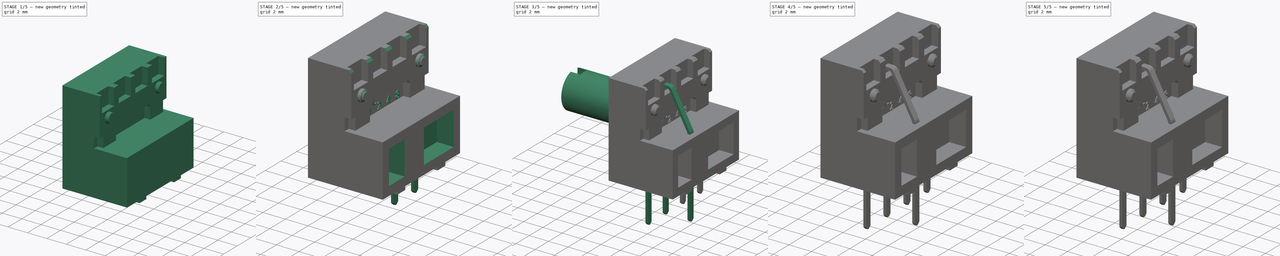
[diagram: build sequence overview — one tinted view per stage of 5, left to right]
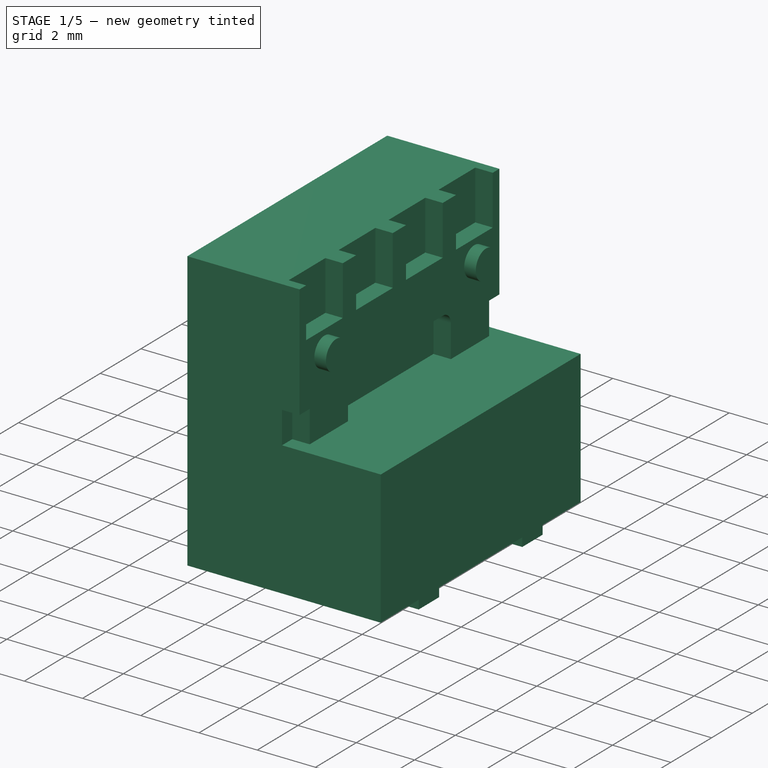
[diagram: stage 1 of 5 — iso view after this stage's code; geometry added in this stage tinted green]
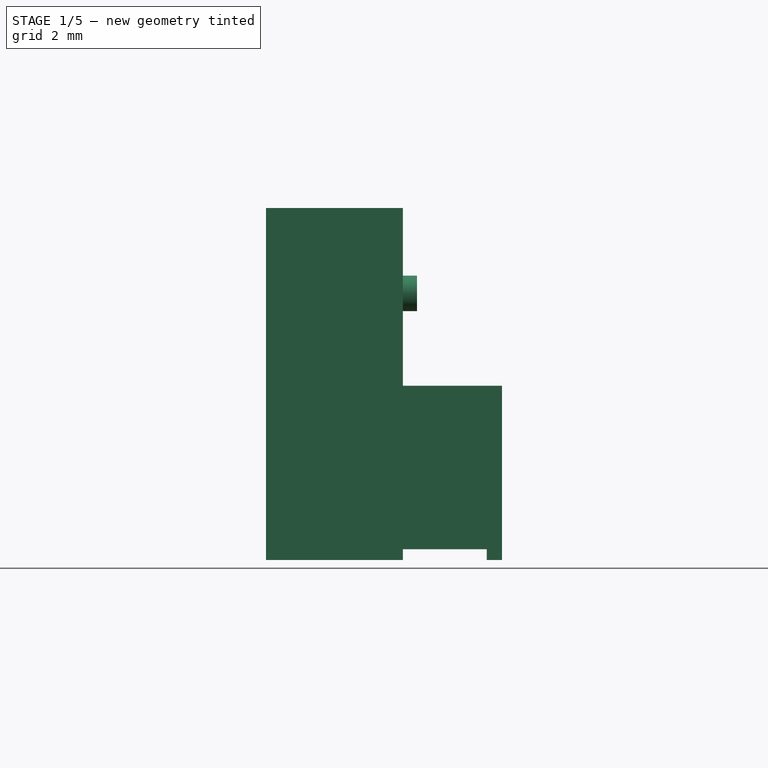
[diagram: stage 1 of 5 — front view after this stage's code; geometry added in this stage tinted green]
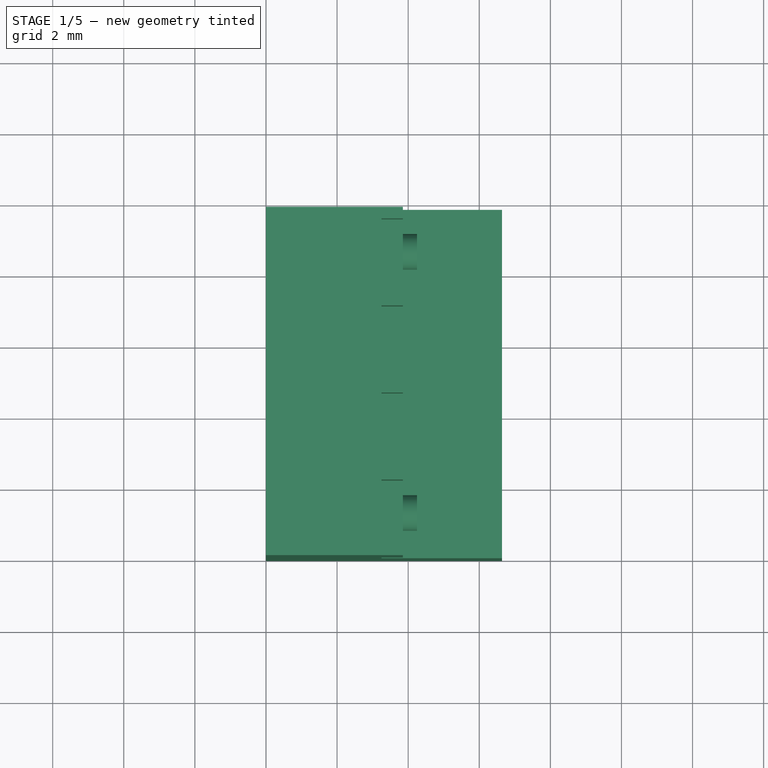
[diagram: stage 1 of 5 — top view after this stage's code; geometry added in this stage tinted green]
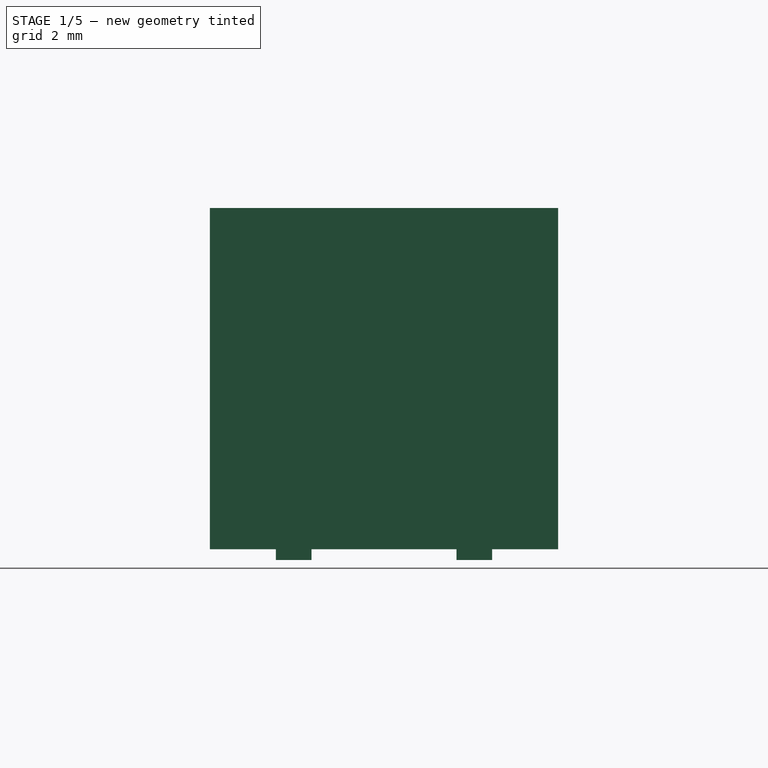
[diagram: stage 1 of 5 — right view after this stage's code; geometry added in this stage tinted green]
FCSTD DOCUMENT  (FreeCAD 0.18R4 (GitTag))
Label: RV4HAF-16R-V-B
License: All rights reserved
LicenseURL: http://en.wikipedia.org/wiki/All_rights_reserved
objects: Part::Part2DObjectPython×18, Sketcher::SketchObject×17, Part::Extrusion×16, PartDesign::Pad×13, PartDesign::Body×7, PartDesign::Pocket×6, PartDesign::Chamfer×6, Image::ImagePlane×1
note: 102 computed .brp shape members not serialized (recipe doc carries the construction recipe); baked Part::Feature solids carry a one-line shape summary decoded from their .brp

FEATURE [Sketcher::SketchObject] Sketch
  MapMode = 5
  Support = -> [XY_Plane]
  sketch-geometry (4):
    g0: LineSegment StartX=0 StartY=9.8 StartZ=0 EndX=3.85 EndY=9.8 EndZ=0
    g1: LineSegment StartX=3.85 StartY=9.8 StartZ=0 EndX=3.85 EndY=0 EndZ=0
    g2: LineSegment StartX=3.85 StartY=0 StartZ=0 EndX=0 EndY=0 EndZ=0
    g3: LineSegment StartX=0 StartY=0 StartZ=0 EndX=0 EndY=9.8 EndZ=0
  constraints (11):
    c: Coincident(g0,g1)
    c: Coincident(g1,g2)
    c: Coincident(g2,g3)
    c: Coincident(g3,g0)
    c: Horizontal(g0)
    c: Horizontal(g2)
    c: Vertical(g1)
    c: Vertical(g3)
    c: Coincident(g2,g-1)
    c: DistanceX(g2,g2) = 3.85
    c: DistanceY(g3,g3) = 9.8
FEATURE [PartDesign::Pad] Pad
  Length = 9.6
  Length2 = 100
  Profile = -> Sketch
  Type = 0
  expr: Length = 9.6
FEATURE [Sketcher::SketchObject] Sketch001
  MapMode = 5
  Support = -> [XY_Plane]
  sketch-geometry (9):
    g0: LineSegment StartX=0 StartY=2.86 StartZ=0 EndX=3.85 EndY=2.86 EndZ=0
    g1: LineSegment StartX=3.85 StartY=2.86 StartZ=0 EndX=3.85 EndY=1.86 EndZ=0
    g2: LineSegment StartX=3.85 StartY=1.86 StartZ=0 EndX=0 EndY=1.86 EndZ=0
    g3: LineSegment StartX=0 StartY=1.86 StartZ=0 EndX=0 EndY=2.86 EndZ=0
    g4: LineSegment StartX=0 StartY=7.94 StartZ=0 EndX=3.85 EndY=7.94 EndZ=0
    g5: LineSegment StartX=3.85 StartY=7.94 StartZ=0 EndX=3.85 EndY=6.94 EndZ=0
    g6: LineSegment StartX=3.85 StartY=6.94 StartZ=0 EndX=0 EndY=6.94 EndZ=0
    g7: LineSegment StartX=0 StartY=6.94 StartZ=0 EndX=0 EndY=7.94 EndZ=0
    g8: GeomPoint X=0 Y=4.9 Z=0
  constraints (25):
    c: Coincident(g0,g1)
    c: Coincident(g1,g2)
    c: Coincident(g2,g3)
    c: Coincident(g3,g0)
    c: Horizontal(g0)
    c: Horizontal(g2)
    c: Vertical(g1)
    c: Vertical(g3)
    c: Coincident(g4,g5)
    c: Coincident(g5,g6)
    c: Coincident(g6,g7)
    c: Coincident(g7,g4)
    c: Horizontal(g4)
    c: Horizontal(g6)
    c: Vertical(g5)
    c: Vertical(g7)
    c: Equal(g6,g0)
    c: Vertical(g0,g6)
    c: DistanceY(g7,g7) = 1
    c: Equal(g3,g7)
    c: DistanceY(g0,g6) = 4.08
    c: DistanceY(g-1,g8) = 4.9
    c: Symmetric(g0,g6,g8)
    c: DistanceX(g4,g4) = 3.85
    c: Vertical(g2,g-1)
FEATURE [PartDesign::Pad] Pad001
  BaseFeature = -> Pad
  Length = 0.3
  Length2 = 100
  Profile = -> Sketch001
  Reversed = true
  Type = 0
FEATURE [Sketcher::SketchObject] Sketch002
  MapMode = 5
  Support = -> [XY_Plane]
  sketch-geometry (4):
    g0: LineSegment StartX=3.85 StartY=9.8 StartZ=0 EndX=6.64 EndY=9.8 EndZ=0
    g1: LineSegment StartX=6.64 StartY=9.8 StartZ=0 EndX=6.64 EndY=0 EndZ=0
    g2: LineSegment StartX=6.64 StartY=0 StartZ=0 EndX=3.85 EndY=0 EndZ=0
    g3: LineSegment StartX=3.85 StartY=0 StartZ=0 EndX=3.85 EndY=9.8 EndZ=0
  constraints (12):
    c: Coincident(g0,g1)
    c: Coincident(g1,g2)
    c: Coincident(g2,g3)
    c: Coincident(g3,g0)
    c: Horizontal(g0)
    c: Horizontal(g2)
    c: Vertical(g1)
    c: Vertical(g3)
    c: DistanceY(g1,g1) = 9.8
    c: Horizontal(g2,g-1)
    c: DistanceX(g-1,g2) = 3.85
    c: DistanceX(g-1,g1) = 6.64
FEATURE [PartDesign::Pad] Pad002
  BaseFeature = -> Pad001
  Length = 4.6
  Length2 = 100
  Profile = -> Sketch002
  Type = 0
FEATURE [Sketcher::SketchObject] Sketch003
  MapMode = 5
  Support = -> [XY_Plane]
  sketch-geometry (9):
    g0: LineSegment StartX=6.21 StartY=2.86 StartZ=0 EndX=6.64 EndY=2.86 EndZ=0
    g1: LineSegment StartX=6.64 StartY=2.86 StartZ=0 EndX=6.64 EndY=1.86 EndZ=0
    g2: LineSegment StartX=6.64 StartY=1.86 StartZ=0 EndX=6.21 EndY=1.86 EndZ=0
    g3: LineSegment StartX=6.21 StartY=1.86 StartZ=0 EndX=6.21 EndY=2.86 EndZ=0
    g4: LineSegment StartX=6.21 StartY=7.94 StartZ=0 EndX=6.64 EndY=7.94 EndZ=0
    g5: LineSegment StartX=6.64 StartY=7.94 StartZ=0 EndX=6.64 EndY=6.94 EndZ=0
    g6: LineSegment StartX=6.64 StartY=6.94 StartZ=0 EndX=6.21 EndY=6.94 EndZ=0
    g7: LineSegment StartX=6.21 StartY=6.94 StartZ=0 EndX=6.21 EndY=7.94 EndZ=0
    g8: GeomPoint X=6.21 Y=4.9 Z=0
  constraints (25):
    c: Coincident(g0,g1)
    c: Coincident(g1,g2)
    c: Coincident(g2,g3)
    c: Coincident(g3,g0)
    c: Horizontal(g0)
    c: Horizontal(g2)
    c: Vertical(g1)
    c: Vertical(g3)
    c: Coincident(g4,g5)
    c: Coincident(g5,g6)
    c: Coincident(g6,g7)
    c: Coincident(g7,g4)
    c: Horizontal(g4)
    c: Horizontal(g6)
    c: Vertical(g5)
    c: Vertical(g7)
    c: Equal(g6,g0)
    c: Vertical(g0,g6)
    c: DistanceY(g7,g7) = 1
    c: Equal(g3,g7)
    c: DistanceY(g0,g6) = 4.08
    c: DistanceY(g-1,g8) = 4.9
    c: Symmetric(g0,g6,g8)
    c: DistanceX(g-1,g2) = 6.21
    c: DistanceX(g-1,g1) = 6.64
FEATURE [PartDesign::Pad] Pad003
  BaseFeature = -> Pad002
  Length = 0.3
  Length2 = 100
  Profile = -> Sketch003
  Reversed = true
  Type = 0
FEATURE [Sketcher::SketchObject] Sketch004
  MapMode = 5
  Placement = pos=(3.85,0,0) rot=(0.57735,0.57735,0.57735;2.0944rad)
  Support = -> [Pad003]
  sketch-geometry (37):
    g0: LineSegment StartX=0.325 StartY=9.6 StartZ=0 EndX=2.125 EndY=9.6 EndZ=0
    g1: LineSegment StartX=2.125 StartY=9.6 StartZ=0 EndX=2.125 EndY=7.9 EndZ=0
    g2: LineSegment StartX=2.125 StartY=7.9 StartZ=0 EndX=0.325 EndY=7.9 EndZ=0
    g3: LineSegment StartX=0.325 StartY=7.9 StartZ=0 EndX=0.325 EndY=9.6 EndZ=0
    g4: LineSegment StartX=2.775 StartY=9.6 StartZ=0 EndX=4.575 EndY=9.6 EndZ=0
    g5: LineSegment StartX=4.575 StartY=9.6 StartZ=0 EndX=4.575 EndY=7.9 EndZ=0
    g6: LineSegment StartX=4.575 StartY=7.9 StartZ=0 EndX=2.775 EndY=7.9 EndZ=0
    g7: LineSegment StartX=2.775 StartY=7.9 StartZ=0 EndX=2.775 EndY=9.6 EndZ=0
    g8: LineSegment StartX=5.225 StartY=9.6 StartZ=0 EndX=7.025 EndY=9.6 EndZ=0
    g9: LineSegment StartX=7.025 StartY=9.6 StartZ=0 EndX=7.025 EndY=7.9 EndZ=0
    g10: LineSegment StartX=7.025 StartY=7.9 StartZ=0 EndX=5.225 EndY=7.9 EndZ=0
    g11: LineSegment StartX=5.225 StartY=7.9 StartZ=0 EndX=5.225 EndY=9.6 EndZ=0
    g12: LineSegment StartX=7.675 StartY=9.6 StartZ=0 EndX=9.475 EndY=9.6 EndZ=0
    g13: LineSegment StartX=9.475 StartY=9.6 StartZ=0 EndX=9.475 EndY=7.9 EndZ=0
    g14: LineSegment StartX=9.475 StartY=7.9 StartZ=0 EndX=7.675 EndY=7.9 EndZ=0
    g15: LineSegment StartX=7.675 StartY=7.9 StartZ=0 EndX=7.675 EndY=9.6 EndZ=0
    g16: LineSegment [constr] StartX=2.125 StartY=9.6 StartZ=0 EndX=2.775 EndY=9.6 EndZ=0
    g17: LineSegment [constr] StartX=4.575 StartY=9.6 StartZ=0 EndX=5.225 EndY=9.6 EndZ=0
    g18: LineSegment [constr] StartX=7.025 StartY=9.6 StartZ=0 EndX=7.675 EndY=9.6 EndZ=0
    g19: LineSegment [constr] StartX=0.325 StartY=9.6 StartZ=0 EndX=0 EndY=9.6 EndZ=0
    g20: LineSegment [constr] StartX=9.475 StartY=9.6 StartZ=0 EndX=9.8 EndY=9.6 EndZ=0
    g21: LineSegment StartX=0 StartY=5.7 StartZ=0 EndX=0.5 EndY=5.7 EndZ=0
    g22: LineSegment StartX=0.5 StartY=5.7 StartZ=0 EndX=0.5 EndY=4.6 EndZ=0
    g23: LineSegment StartX=0.5 StartY=4.6 StartZ=0 EndX=0 EndY=4.6 EndZ=0
    g24: LineSegment StartX=0 StartY=4.6 StartZ=0 EndX=0 EndY=5.7 EndZ=0
    g25: LineSegment StartX=9.8 StartY=5.7 StartZ=0 EndX=9.3 EndY=5.7 EndZ=0
    g26: LineSegment StartX=9.3 StartY=5.7 StartZ=0 EndX=9.3 EndY=4.6 EndZ=0
    g27: LineSegment StartX=9.3 StartY=4.6 StartZ=0 EndX=9.8 EndY=4.6 EndZ=0
    g28: LineSegment StartX=9.8 StartY=4.6 StartZ=0 EndX=9.8 EndY=5.7 EndZ=0
    g29: LineSegment StartX=2.775 StartY=6.1 StartZ=0 EndX=7.025 EndY=6.1 EndZ=0
    g30: LineSegment StartX=7.425 StartY=5.7 StartZ=0 EndX=7.425 EndY=4.6 EndZ=0
    g31: LineSegment StartX=7.425 StartY=4.6 StartZ=0 EndX=2.375 EndY=4.6 EndZ=0
    g32: LineSegment StartX=2.375 StartY=4.6 StartZ=0 EndX=2.375 EndY=5.7 EndZ=0
    g33: ArcOfCircle CenterX=2.775 CenterY=5.7 CenterZ=0 NormalX=0 NormalY=0 NormalZ=1 AngleXU=0 Radius=0.4 StartAngle=1.5708 EndAngle=3.14159
    g34: ArcOfCircle CenterX=7.025 CenterY=5.7 CenterZ=0 NormalX=0 NormalY=0 NormalZ=1 AngleXU=0 Radius=0.4 StartAngle=2e-16 EndAngle=1.5708
    g35: LineSegment [constr] StartX=2.375 StartY=4.6 StartZ=0 EndX=0.5 EndY=4.6 EndZ=0
    g36: LineSegment [constr] StartX=7.425 StartY=4.6 StartZ=0 EndX=9.3 EndY=4.6 EndZ=0
  constraints (104):
    c: Coincident(g0,g1)
    c: Coincident(g1,g2)
    c: Coincident(g2,g3)
    c: Coincident(g3,g0)
    c: Horizontal(g0)
    c: Horizontal(g2)
    c: Vertical(g1)
    c: Vertical(g3)
    c: Coincident(g4,g5)
    c: Coincident(g5,g6)
    c: Coincident(g6,g7)
    c: Coincident(g7,g4)
    c: Horizontal(g4)
    c: Horizontal(g6)
    c: Vertical(g5)
    c: Vertical(g7)
    c: Coincident(g8,g9)
    c: Coincident(g9,g10)
    c: Coincident(g10,g11)
    c: Coincident(g11,g8)
    c: Horizontal(g8)
    c: Horizontal(g10)
    c: Vertical(g9)
    c: Vertical(g11)
    c: Coincident(g12,g13)
    c: Coincident(g13,g14)
    c: Coincident(g14,g15)
    c: Coincident(g15,g12)
    c: Horizontal(g12)
    c: Horizontal(g14)
    c: Vertical(g13)
    c: Vertical(g15)
    c: Horizontal(g12,g8)
    c: Horizontal(g8,g4)
    c: Horizontal(g4,g0)
    c: Equal(g0,g4)
    c: Equal(g4,g8)
    c: Equal(g8,g12)
    c: Coincident(g16,g4)
    c: Coincident(g17,g4)
    c: Coincident(g17,g8)
    c: Coincident(g18,g8)
    c: Coincident(g18,g12)
    c: Coincident(g16,g0)
    c: Equal(g16,g17)
    c: Equal(g17,g18)
    c: Horizontal(g1,g6)
    c: Horizontal(g5,g10)
    c: Horizontal(g9,g14)
    c: DistanceY(g-1,g0) = 9.6
    c: DistanceY(g-1,g2) = 7.9
    c: DistanceX(g16,g16) = 0.65
    c: Coincident(g19,g0)
    c: PointOnObject(g19,g-2)
    c: Horizontal(g19)
    c: Coincident(g20,g12)
    c: Horizontal(g20)
    c: Equal(g20,g19)
    c: DistanceX(g19,g20) = 9.8
    c: DistanceX(g2,g2) = 1.8
    c: Coincident(g21,g22)
    c: Coincident(g22,g23)
    c: Coincident(g23,g24)
    c: Coincident(g24,g21)
    c: Horizontal(g21)
    c: Horizontal(g23)
    c: Vertical(g22)
    c: Vertical(g24)
    c: PointOnObject(g21,g-2)
    c: Coincident(g25,g26)
    c: Coincident(g26,g27)
    c: Coincident(g27,g28)
    c: Coincident(g28,g25)
    c: Horizontal(g25)
    c: Horizontal(g27)
    c: Vertical(g26)
    c: Vertical(g28)
    c: Equal(g21,g25)
    c: Horizontal(g25,g21)
    c: Vertical(g25,g20)
    c: Horizontal(g26,g22)
    c: DistanceX(g21,g21) = 0.5
    c: DistanceY(g21,g2) = 2.2
    c: DistanceY(g24,g24) = 1.1
    c: Coincident(g30,g31)
    c: Coincident(g31,g32)
    c: Horizontal(g29)
    c: Horizontal(g31)
    c: Vertical(g30)
    c: Vertical(g32)
    c: Tangent(g32,g33) = 1.5708
    c: Tangent(g29,g33) = 1.5708
    c: Tangent(g29,g34) = 1.5708
    c: Tangent(g30,g34) = 1.5708
    c: Equal(g34,g33)
    c: Coincident(g35,g31)
    c: Coincident(g35,g22)
    c: Coincident(g36,g30)
    c: Coincident(g36,g26)
    c: Horizontal(g36)
    c: Equal(g35,g36)
    c: Radius(g33) = 0.4
    c: Horizontal(g32,g21)
    c: Vertical(g29,g6)
FEATURE [Image::ImagePlane] ImagePlane
  Placement = pos=(2.77,13.7,10.15) rot=(0.57735,0.57735,0.57735;2.0944rad)
  XSize = 65.7354
  YSize = 41.7947
FEATURE [PartDesign::Pocket] Pocket
  BaseFeature = -> Pad003
  Length = 0.6
  Length2 = 100
  Profile = -> Sketch004
  Type = 0
FEATURE [Sketcher::SketchObject] Sketch005
  MapMode = 5
  Placement = pos=(3.85,0,0) rot=(0.57735,0.57735,0.57735;2.0944rad)
  Support = -> [Pad003]
  sketch-geometry (25):
    g0: LineSegment [constr] StartX=0.325 StartY=9.6 StartZ=0 EndX=2.125 EndY=9.6 EndZ=0
    g1: LineSegment [constr] StartX=2.125 StartY=9.6 StartZ=0 EndX=2.125 EndY=7.9 EndZ=0
    g2: LineSegment [constr] StartX=2.125 StartY=7.9 StartZ=0 EndX=0.325 EndY=7.9 EndZ=0
    g3: LineSegment [constr] StartX=0.325 StartY=7.9 StartZ=0 EndX=0.325 EndY=9.6 EndZ=0
    g4: LineSegment [constr] StartX=2.775 StartY=9.6 StartZ=0 EndX=4.575 EndY=9.6 EndZ=0
    g5: LineSegment [constr] StartX=4.575 StartY=9.6 StartZ=0 EndX=4.575 EndY=7.9 EndZ=0
    g6: LineSegment [constr] StartX=4.575 StartY=7.9 StartZ=0 EndX=2.775 EndY=7.9 EndZ=0
    g7: LineSegment [constr] StartX=2.775 StartY=7.9 StartZ=0 EndX=2.775 EndY=9.6 EndZ=0
    g8: LineSegment [constr] StartX=5.225 StartY=9.6 StartZ=0 EndX=7.025 EndY=9.6 EndZ=0
    g9: LineSegment [constr] StartX=7.025 StartY=9.6 StartZ=0 EndX=7.025 EndY=7.9 EndZ=0
    g10: LineSegment [constr] StartX=7.025 StartY=7.9 StartZ=0 EndX=5.225 EndY=7.9 EndZ=0
    g11: LineSegment [constr] StartX=5.225 StartY=7.9 StartZ=0 EndX=5.225 EndY=9.6 EndZ=0
    g12: LineSegment [constr] StartX=7.675 StartY=9.6 StartZ=0 EndX=9.475 EndY=9.6 EndZ=0
    g13: LineSegment [constr] StartX=9.475 StartY=9.6 StartZ=0 EndX=9.475 EndY=7.9 EndZ=0
    g14: LineSegment [constr] StartX=9.475 StartY=7.9 StartZ=0 EndX=7.675 EndY=7.9 EndZ=0
    g15: LineSegment [constr] StartX=7.675 StartY=7.9 StartZ=0 EndX=7.675 EndY=9.6 EndZ=0
    g16: LineSegment [constr] StartX=2.125 StartY=9.6 StartZ=0 EndX=2.775 EndY=9.6 EndZ=0
    g17: LineSegment [constr] StartX=4.575 StartY=9.6 StartZ=0 EndX=5.225 EndY=9.6 EndZ=0
    g18: LineSegment [constr] StartX=7.025 StartY=9.6 StartZ=0 EndX=7.675 EndY=9.6 EndZ=0
    g19: LineSegment [constr] StartX=0.325 StartY=9.6 StartZ=0 EndX=0 EndY=9.6 EndZ=0
    g20: LineSegment [constr] StartX=9.475 StartY=9.6 StartZ=0 EndX=9.8 EndY=9.6 EndZ=0
    g21: Circle CenterX=1.225 CenterY=7.2 CenterZ=0 NormalX=0 NormalY=0 NormalZ=1 AngleXU=0 Radius=0.5
    g22: Circle CenterX=8.575 CenterY=7.2 CenterZ=0 NormalX=0 NormalY=0 NormalZ=1 AngleXU=0 Radius=0.5
    g23: GeomPoint X=1.225 Y=7.9 Z=0
    g24: GeomPoint X=8.575 Y=7.9 Z=0
  constraints (68):
    c: Coincident(g0,g1)
    c: Coincident(g1,g2)
    c: Coincident(g2,g3)
    c: Coincident(g3,g0)
    c: Horizontal(g0)
    c: Horizontal(g2)
    c: Vertical(g1)
    c: Vertical(g3)
    c: Coincident(g4,g5)
    c: Coincident(g5,g6)
    c: Coincident(g6,g7)
    c: Coincident(g7,g4)
    c: Horizontal(g4)
    c: Horizontal(g6)
    c: Vertical(g5)
    c: Vertical(g7)
    c: Coincident(g8,g9)
    c: Coincident(g9,g10)
    c: Coincident(g10,g11)
    c: Coincident(g11,g8)
    c: Horizontal(g8)
    c: Horizontal(g10)
    c: Vertical(g9)
    c: Vertical(g11)
    c: Coincident(g12,g13)
    c: Coincident(g13,g14)
    c: Coincident(g14,g15)
    c: Coincident(g15,g12)
    c: Horizontal(g12)
    c: Horizontal(g14)
    c: Vertical(g13)
    c: Vertical(g15)
    c: Horizontal(g12,g8)
    c: Horizontal(g8,g4)
    c: Horizontal(g4,g0)
    c: Equal(g0,g4)
    c: Equal(g4,g8)
    c: Equal(g8,g12)
    c: Coincident(g16,g4)
    c: Coincident(g17,g4)
    c: Coincident(g17,g8)
    c: Coincident(g18,g8)
    c: Coincident(g18,g12)
    c: Coincident(g16,g0)
    c: Equal(g16,g17)
    c: Equal(g17,g18)
    c: Horizontal(g1,g6)
    c: Horizontal(g5,g10)
    c: Horizontal(g9,g14)
    c: DistanceY(g-1,g0) = 9.6
    c: DistanceY(g-1,g2) = 7.9
    c: DistanceX(g16,g16) = 0.65
    c: Coincident(g19,g0)
    c: PointOnObject(g19,g-2)
    c: Horizontal(g19)
    c: Coincident(g20,g12)
    c: Horizontal(g20)
    c: Equal(g20,g19)
    c: DistanceX(g19,g20) = 9.8
    c: DistanceX(g2,g2) = 1.8  'D'
    c: Equal(g22,g21)
    c: Horizontal(g22,g21)
    c: Symmetric(g14,g13,g24)
    c: Symmetric(g2,g1,g23)
    c: Vertical(g21,g23)
    c: Vertical(g24,g22)
    c: Diameter(g21) = 1
    c: DistanceY(g21,g23) = 0.7
FEATURE [PartDesign::Pad] Pad004
  BaseFeature = -> Pocket
  Length = 0.4
  Length2 = 100
  Profile = -> Sketch005
  Type = 0
FEATURE [Sketcher::SketchObject] Sketch006
  MapMode = 5
  Placement = pos=(0,0,0) rot=(0.57735,0.57735,0.57735;2.0944rad)
  Support = -> [YZ_Plane]
  sketch-geometry (1):
    g0: Circle CenterX=4.9 CenterY=4.8 CenterZ=0 NormalX=0 NormalY=0 NormalZ=1 AngleXU=0 Radius=2
  constraints (3):
    c: Radius(g0) = 2
    c: DistanceX(g-1,g0) = 4.9
    c: DistanceY(g-1,g0) = 4.8
FEATURE [PartDesign::Pocket] Pocket001
  BaseFeature = -> Pad004
  Length = 1
  Length2 = 100
  Profile = -> Sketch006
  Reversed = true
  Type = 0
FEATURE [Sketcher::SketchObject] Sketch007
  AttachmentOffset = pos=(0,0,1) rot=(0,0,1;0rad)
  MapMode = 5
  Placement = pos=(1,-2e-16,2e-16) rot=(0.57735,0.57735,0.57735;2.0944rad)
  Support = -> [YZ_Plane001]
  sketch-geometry (1):
    g0: Circle CenterX=4.9 CenterY=4.8 CenterZ=0 NormalX=0 NormalY=0 NormalZ=1 AngleXU=0 Radius=1.9
  constraints (3):
    c: Radius(g0) = 1.9
    c: DistanceX(g-1,g0) = 4.9
    c: DistanceY(g-1,g0) = 4.8
FEATURE [Sketcher::SketchObject] Sketch008
  MapMode = 5
  Placement = pos=(0,0,0) rot=(0.57735,0.57735,0.57735;2.0944rad)
  Support = -> [YZ_Plane]
  sketch-geometry (3):
    g0: LineSegment StartX=9.8 StartY=0.6 StartZ=0 EndX=9.2 EndY=0 EndZ=0
    g1: LineSegment StartX=9.2 StartY=0 StartZ=0 EndX=9.8 EndY=0 EndZ=0
    g2: LineSegment StartX=9.8 StartY=0 StartZ=0 EndX=9.8 EndY=0.6 EndZ=0
  constraints (9):
    c: Coincident(g0,g1)
    c: Horizontal(g1)
    c: Coincident(g1,g2)
    c: Coincident(g2,g0)
    c: Vertical(g2)
    c: DistanceX(g1,g1) = 0.6
    c: Horizontal(g1,g-1)
    c: DistanceX(g-1,g1) = 9.8
    c: Equal(g1,g2)
FEATURE [PartDesign::Pocket] Pocket002
  BaseFeature = -> Pocket001
  Length = 1
  Length2 = 100
  Profile = -> Sketch008
  Reversed = true
  Type = 0
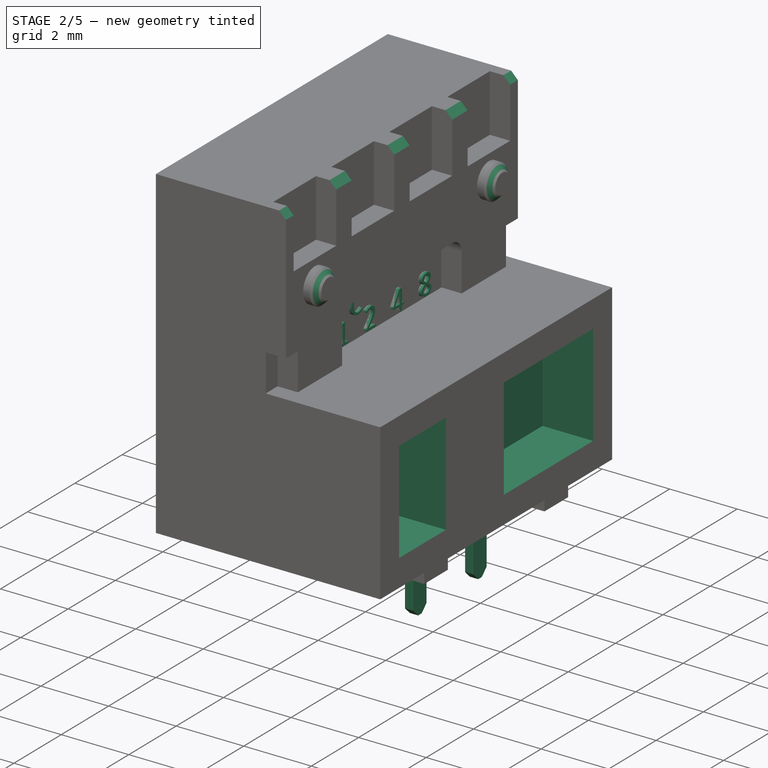
[diagram: stage 2 of 5 — iso view after this stage's code; geometry added in this stage tinted green]
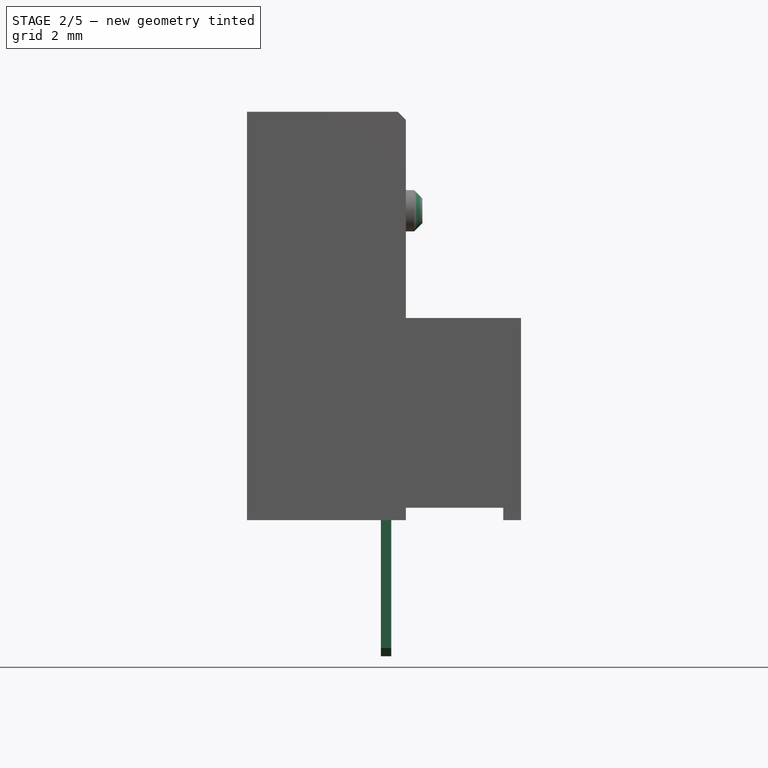
[diagram: stage 2 of 5 — front view after this stage's code; geometry added in this stage tinted green]
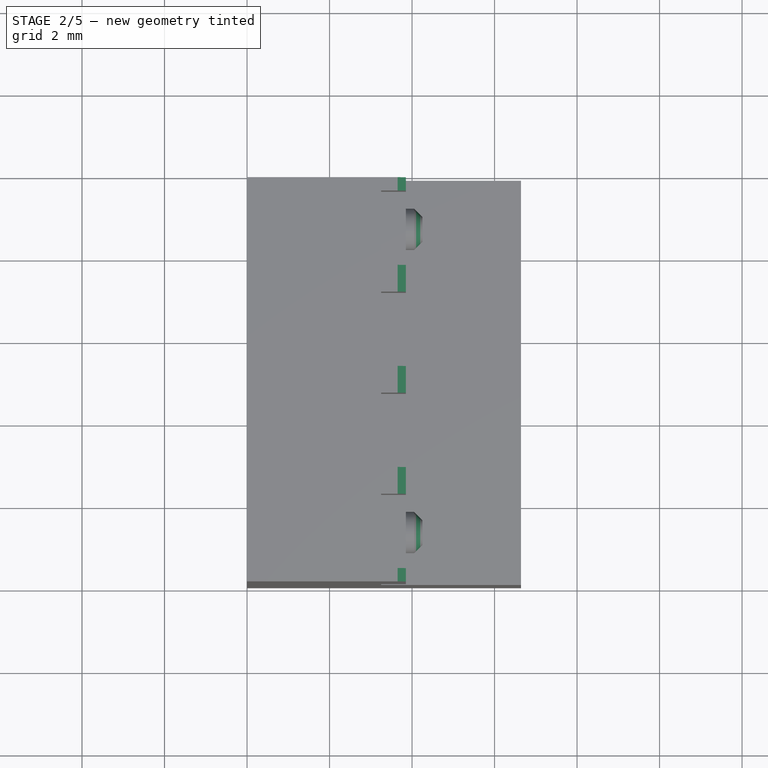
[diagram: stage 2 of 5 — top view after this stage's code; geometry added in this stage tinted green]
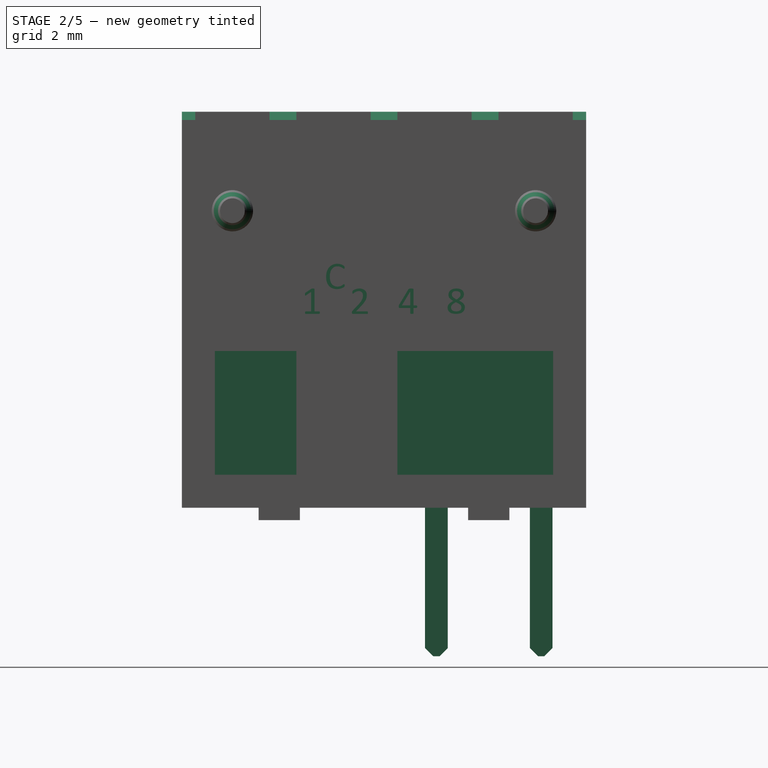
[diagram: stage 2 of 5 — right view after this stage's code; geometry added in this stage tinted green]
FEATURE [PartDesign::Body] Body001  label="Knob"
  Group = -> [Sketch007,Pad005,Sketch009,Pocket003,Sketch010,Pocket004]
  Origin = -> Origin001
  Tip = -> Pocket004
FEATURE [Part::Part2DObjectPython] ShapeString  label="In1248"  # Draft 2D object (typed FeaturePython)
  AttachmentOffset = pos=(2.9,4.7,0) rot=(0,0,1;0rad)
  FontFile = <path>
  MapMode = 5
  Placement = pos=(3.25,2.9,4.7) rot=(0.57735,0.57735,0.57735;2.0944rad)
  Size = 0.8
  String = 1   2   4   8
  Support = -> [Pocket002]
  Tracking = 0
FEATURE [PartDesign::Pad] Pad006
  BaseFeature = -> Pocket002
  Length = 0.1
  Length2 = 100
  Profile = -> ShapeString
  Type = 0
FEATURE [Part::Part2DObjectPython] ShapeString001  label="OutC"  # Draft 2D object (typed FeaturePython)
  AttachmentOffset = pos=(3.45,5.3,0) rot=(0,0,1;0rad)
  FontFile = <path>
  MapMode = 5
  Placement = pos=(3.25,3.45,5.3) rot=(0.57735,0.57735,0.57735;2.0944rad)
  Size = 0.8
  String = C
  Support = -> [Pocket002]
  Tracking = 0
FEATURE [PartDesign::Pad] Pad007
  BaseFeature = -> Pad006
  Length = 0.1
  Length2 = 100
  Profile = -> ShapeString001
  Type = 0
FEATURE [Sketcher::SketchObject] Sketch011
  MapMode = 5
  Placement = pos=(6.64,0,0) rot=(0.57735,0.57735,0.57735;2.0944rad)
  Support = -> [Pad003]
  sketch-geometry (35):
    g0: LineSegment [constr] StartX=0.325 StartY=9.6 StartZ=0 EndX=2.125 EndY=9.6 EndZ=0
    g1: LineSegment [constr] StartX=2.125 StartY=9.6 StartZ=0 EndX=2.125 EndY=7.9 EndZ=0
    g2: LineSegment [constr] StartX=2.125 StartY=7.9 StartZ=0 EndX=0.325 EndY=7.9 EndZ=0
    g3: LineSegment [constr] StartX=0.325 StartY=7.9 StartZ=0 EndX=0.325 EndY=9.6 EndZ=0
    g4: LineSegment [constr] StartX=2.775 StartY=9.6 StartZ=0 EndX=4.575 EndY=9.6 EndZ=0
    g5: LineSegment [constr] StartX=4.575 StartY=9.6 StartZ=0 EndX=4.575 EndY=7.9 EndZ=0
    g6: LineSegment [constr] StartX=4.575 StartY=7.9 StartZ=0 EndX=2.775 EndY=7.9 EndZ=0
    g7: LineSegment [constr] StartX=2.775 StartY=7.9 StartZ=0 EndX=2.775 EndY=9.6 EndZ=0
    g8: LineSegment [constr] StartX=5.225 StartY=9.6 StartZ=0 EndX=7.025 EndY=9.6 EndZ=0
    g9: LineSegment [constr] StartX=7.025 StartY=9.6 StartZ=0 EndX=7.025 EndY=7.9 EndZ=0
    g10: LineSegment [constr] StartX=7.025 StartY=7.9 StartZ=0 EndX=5.225 EndY=7.9 EndZ=0
    g11: LineSegment [constr] StartX=5.225 StartY=7.9 StartZ=0 EndX=5.225 EndY=9.6 EndZ=0
    g12: LineSegment [constr] StartX=7.675 StartY=9.6 StartZ=0 EndX=9.475 EndY=9.6 EndZ=0
    g13: LineSegment [constr] StartX=9.475 StartY=9.6 StartZ=0 EndX=9.475 EndY=7.9 EndZ=0
    g14: LineSegment [constr] StartX=9.475 StartY=7.9 StartZ=0 EndX=7.675 EndY=7.9 EndZ=0
    g15: LineSegment [constr] StartX=7.675 StartY=7.9 StartZ=0 EndX=7.675 EndY=9.6 EndZ=0
    g16: LineSegment [constr] StartX=2.125 StartY=9.6 StartZ=0 EndX=2.775 EndY=9.6 EndZ=0
    g17: LineSegment [constr] StartX=4.575 StartY=9.6 StartZ=0 EndX=5.225 EndY=9.6 EndZ=0
    g18: LineSegment [constr] StartX=7.025 StartY=9.6 StartZ=0 EndX=7.675 EndY=9.6 EndZ=0
    g19: LineSegment [constr] StartX=0.325 StartY=9.6 StartZ=0 EndX=0 EndY=9.6 EndZ=0
    g20: LineSegment [constr] StartX=9.475 StartY=9.6 StartZ=0 EndX=9.8 EndY=9.6 EndZ=0
    g21: LineSegment StartX=0.8 StartY=3.8 StartZ=0 EndX=2.775 EndY=3.8 EndZ=0
    g22: LineSegment StartX=2.775 StartY=3.8 StartZ=0 EndX=2.775 EndY=0.8 EndZ=0
    g23: LineSegment StartX=2.775 StartY=0.8 StartZ=0 EndX=0.8 EndY=0.8 EndZ=0
    g24: LineSegment StartX=0.8 StartY=0.8 StartZ=0 EndX=0.8 EndY=3.8 EndZ=0
    g25: LineSegment StartX=5.225 StartY=3.8 StartZ=0 EndX=9 EndY=3.8 EndZ=0
    g26: LineSegment StartX=9 StartY=3.8 StartZ=0 EndX=9 EndY=0.8 EndZ=0
    g27: LineSegment StartX=9 StartY=0.8 StartZ=0 EndX=5.225 EndY=0.8 EndZ=0
    g28: LineSegment StartX=5.225 StartY=0.8 StartZ=0 EndX=5.225 EndY=3.8 EndZ=0
    g29: LineSegment [constr] StartX=0 StartY=4.6 StartZ=0 EndX=0.8 EndY=4.6 EndZ=0
    g30: LineSegment [constr] StartX=0.8 StartY=4.6 StartZ=0 EndX=0.8 EndY=3.8 EndZ=0
    g31: LineSegment [constr] StartX=9 StartY=4.6 StartZ=0 EndX=9 EndY=3.8 EndZ=0
    g32: LineSegment [constr] StartX=9 StartY=4.6 StartZ=0 EndX=9.8 EndY=4.6 EndZ=0
    g33: LineSegment [constr] StartX=0 StartY=0 StartZ=0 EndX=0.8 EndY=0 EndZ=0
    g34: LineSegment [constr] StartX=0.8 StartY=0.8 StartZ=0 EndX=0.8 EndY=0 EndZ=0
  constraints (101):
    c: Coincident(g0,g1)
    c: Coincident(g1,g2)
    c: Coincident(g2,g3)
    c: Coincident(g3,g0)
    c: Horizontal(g0)
    c: Horizontal(g2)
    c: Vertical(g1)
    c: Vertical(g3)
    c: Coincident(g4,g5)
    c: Coincident(g5,g6)
    c: Coincident(g6,g7)
    c: Coincident(g7,g4)
    c: Horizontal(g4)
    c: Horizontal(g6)
    c: Vertical(g5)
    c: Vertical(g7)
    c: Coincident(g8,g9)
    c: Coincident(g9,g10)
    c: Coincident(g10,g11)
    c: Coincident(g11,g8)
    c: Horizontal(g8)
    c: Horizontal(g10)
    c: Vertical(g9)
    c: Vertical(g11)
    c: Coincident(g12,g13)
    c: Coincident(g13,g14)
    c: Coincident(g14,g15)
    c: Coincident(g15,g12)
    c: Horizontal(g12)
    c: Horizontal(g14)
    c: Vertical(g13)
    c: Vertical(g15)
    c: Horizontal(g12,g8)
    c: Horizontal(g8,g4)
    c: Horizontal(g4,g0)
    c: Equal(g0,g4)
    c: Equal(g4,g8)
    c: Equal(g8,g12)
    c: Coincident(g16,g4)
    c: Coincident(g17,g4)
    c: Coincident(g17,g8)
    c: Coincident(g18,g8)
    c: Coincident(g18,g12)
    c: Coincident(g16,g0)
    c: Equal(g16,g17)
    c: Equal(g17,g18)
    c: Horizontal(g1,g6)
    c: Horizontal(g5,g10)
    c: Horizontal(g9,g14)
    c: DistanceY(g-1,g0) = 9.6
    c: DistanceY(g-1,g2) = 7.9
    c: DistanceX(g16,g16) = 0.65
    c: Coincident(g19,g0)
    c: PointOnObject(g19,g-2)
    c: Horizontal(g19)
    c: Coincident(g20,g12)
    c: Horizontal(g20)
    c: Equal(g20,g19)
    c: DistanceX(g19,g20) = 9.8
    c: DistanceX(g2,g2) = 1.8
    c: Coincident(g21,g22)
    c: Coincident(g22,g23)
    c: Coincident(g23,g24)
    c: Coincident(g24,g21)
    c: Horizontal(g21)
    c: Horizontal(g23)
    c: Vertical(g22)
    c: Vertical(g24)
    c: Coincident(g25,g26)
    c: Coincident(g26,g27)
    c: Coincident(g27,g28)
    c: Coincident(g28,g25)
    c: Horizontal(g25)
    c: Horizontal(g27)
    c: Vertical(g26)
    c: Vertical(g28)
    c: Horizontal(g25,g21)
    c: Horizontal(g27,g22)
    c: Vertical(g21,g6)
    c: Vertical(g25,g10)
    c: Horizontal(g29)
    c: Vertical(g30)
    c: Horizontal(g32)
    c: Vertical(g31)
    c: Coincident(g29,g30)
    c: Coincident(g31,g32)
    c: Vertical(g32,g20)
    c: Vertical(g29,g19)
    c: Equal(g32,g31)
    c: Coincident(g25,g31)
    c: Coincident(g30,g21)
    c: Equal(g29,g32)
    c: Horizontal(g31,g29)
    c: DistanceY(g-1,g29) = 4.6
    c: Horizontal(g33)
    c: Vertical(g34)
    c: Coincident(g33,g34)
    c: Coincident(g33,g-1)
    c: Coincident(g23,g34)
    c: Equal(g34,g30)
    c: DistanceX(g29,g29) = 0.8
FEATURE [PartDesign::Pocket] Pocket005
  BaseFeature = -> Pad007
  Length = 1.5
  Length2 = 100
  Profile = -> Sketch011
  Refine = true
  Type = 0
FEATURE [PartDesign::Body] Body004  label="Pin2"
  Group = -> [Sketch014,Pad010,Chamfer003]
  Origin = -> Origin004
  Tip = -> Chamfer003
FEATURE [Sketcher::SketchObject] Sketch015
  AttachmentOffset = pos=(0,0,3.245) rot=(0,0,1;0rad)
  MapMode = 5
  Placement = pos=(3.245,-7e-16,7e-16) rot=(0.57735,0.57735,0.57735;2.0944rad)
  Support = -> [YZ_Plane005]
  sketch-geometry (4):
    g0: LineSegment StartX=5.895 StartY=0 StartZ=0 EndX=6.445 EndY=0 EndZ=0
    g1: LineSegment StartX=6.445 StartY=0 StartZ=0 EndX=6.445 EndY=-3.6 EndZ=0
    g2: LineSegment StartX=6.445 StartY=-3.6 StartZ=0 EndX=5.895 EndY=-3.6 EndZ=0
    g3: LineSegment StartX=5.895 StartY=-3.6 StartZ=0 EndX=5.895 EndY=0 EndZ=0
  constraints (12):
    c: Coincident(g0,g1)
    c: Coincident(g1,g2)
    c: Coincident(g2,g3)
    c: Coincident(g3,g0)
    c: Horizontal(g0)
    c: Horizontal(g2)
    c: Vertical(g1)
    c: Vertical(g3)
    c: DistanceX(g2,g2) = 0.55
    c: Horizontal(g0,g-1)
    c: DistanceY(g3,g3) = 3.6
    c: DistanceX(g-1,g0) = 5.895
FEATURE [PartDesign::Pad] Pad011
  Length = 0.25
  Length2 = 100
  Placement = pos=(0,0,0) rot=(0.57735,0.57735,0.57735;2.0944rad)
  Profile = -> Sketch015
  Type = 0
FEATURE [PartDesign::Chamfer] Chamfer004
  Base = -> Pad011 [Edge8,Edge5]
  BaseFeature = -> Pad011
  Placement = pos=(0,0,0) rot=(0.57735,0.57735,0.57735;2.0944rad)
  Size = 0.2
FEATURE [PartDesign::Body] Body005  label="Pin4"
  Group = -> [Sketch015,Pad011,Chamfer004]
  Origin = -> Origin005
  Tip = -> Chamfer004
FEATURE [Sketcher::SketchObject] Sketch016
  AttachmentOffset = pos=(0,0,3.245) rot=(0,0,1;0rad)
  MapMode = 5
  Placement = pos=(3.245,-7e-16,7e-16) rot=(0.57735,0.57735,0.57735;2.0944rad)
  Support = -> [YZ_Plane006]
  sketch-geometry (4):
    g0: LineSegment StartX=8.435 StartY=0 StartZ=0 EndX=8.985 EndY=0 EndZ=0
    g1: LineSegment StartX=8.985 StartY=0 StartZ=0 EndX=8.985 EndY=-3.6 EndZ=0
    g2: LineSegment StartX=8.985 StartY=-3.6 StartZ=0 EndX=8.435 EndY=-3.6 EndZ=0
    g3: LineSegment StartX=8.435 StartY=-3.6 StartZ=0 EndX=8.435 EndY=0 EndZ=0
  constraints (12):
    c: Coincident(g0,g1)
    c: Coincident(g1,g2)
    c: Coincident(g2,g3)
    c: Coincident(g3,g0)
    c: Horizontal(g0)
    c: Horizontal(g2)
    c: Vertical(g1)
    c: Vertical(g3)
    c: DistanceX(g2,g2) = 0.55
    c: Horizontal(g0,g-1)
    c: DistanceY(g3,g3) = 3.6
    c: DistanceX(g-1,g0) = 8.435
FEATURE [PartDesign::Pad] Pad012
  Length = 0.25
  Length2 = 100
  Placement = pos=(0,0,0) rot=(0.57735,0.57735,0.57735;2.0944rad)
  Profile = -> Sketch016
  Type = 0
FEATURE [PartDesign::Chamfer] Chamfer005
  Base = -> Pad012 [Edge8,Edge5]
  BaseFeature = -> Pad012
  Placement = pos=(0,0,0) rot=(0.57735,0.57735,0.57735;2.0944rad)
  Size = 0.2
FEATURE [PartDesign::Body] Body006  label="Pin8"
  Group = -> [Sketch016,Pad012,Chamfer005]
  Origin = -> Origin006
  Tip = -> Chamfer005
FEATURE [PartDesign::Chamfer] Chamfer
  Base = -> Pocket005 [Edge52,Edge60,Edge66,Edge74,Edge67,Edge129,Edge131]
  BaseFeature = -> Pocket005
  Size = 0.2
FEATURE [PartDesign::Body] Body  label="Base"
  Group = -> [Sketch,Pad,Sketch001,Pad001,Sketch002,Pad002,Sketch003,Pad003,Sketch004,Pocket,Sketch005,Pad004,Sketch006,Pocket001,Sketch008,Pocket002,ShapeString,Pad006,ShapeString001,Pad007,Sketch011,Pocket005,Chamfer]
  Origin = -> Origin
  Tip = -> Chamfer
note: 18 file-system paths scrubbed to <path> (originals preserved in the JSON sidecar)
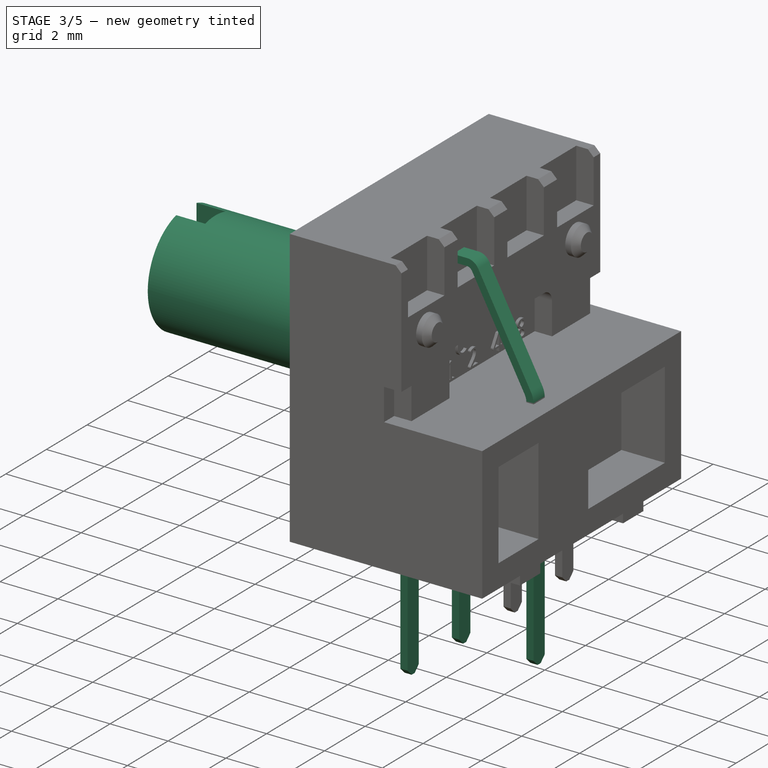
[diagram: stage 3 of 5 — iso view after this stage's code; geometry added in this stage tinted green]
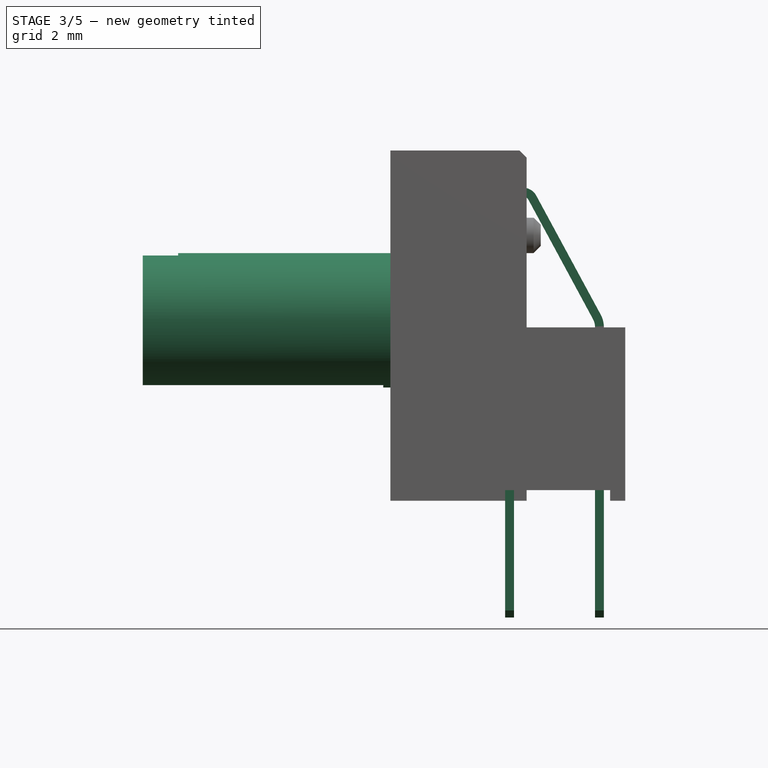
[diagram: stage 3 of 5 — front view after this stage's code; geometry added in this stage tinted green]
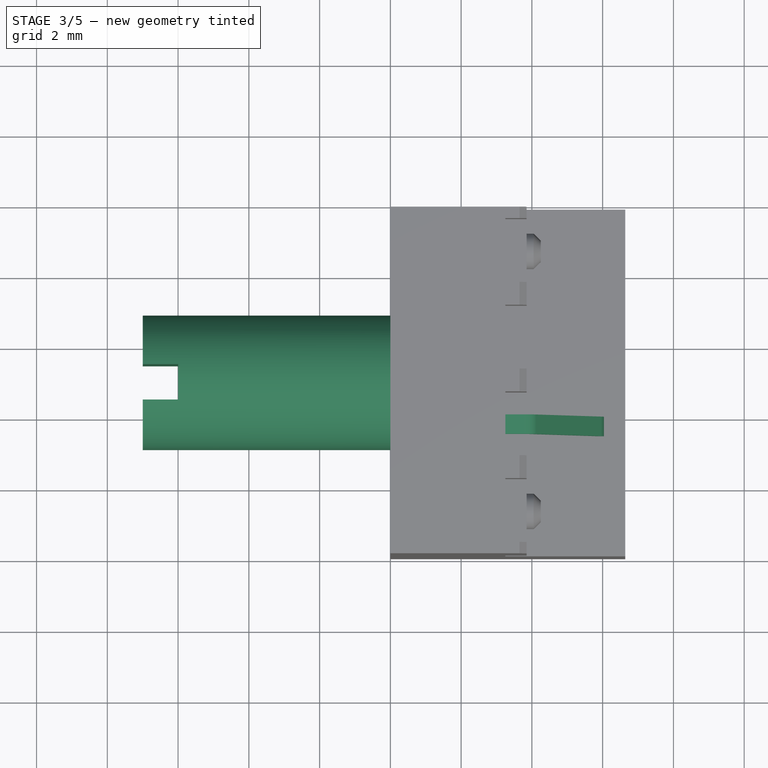
[diagram: stage 3 of 5 — top view after this stage's code; geometry added in this stage tinted green]
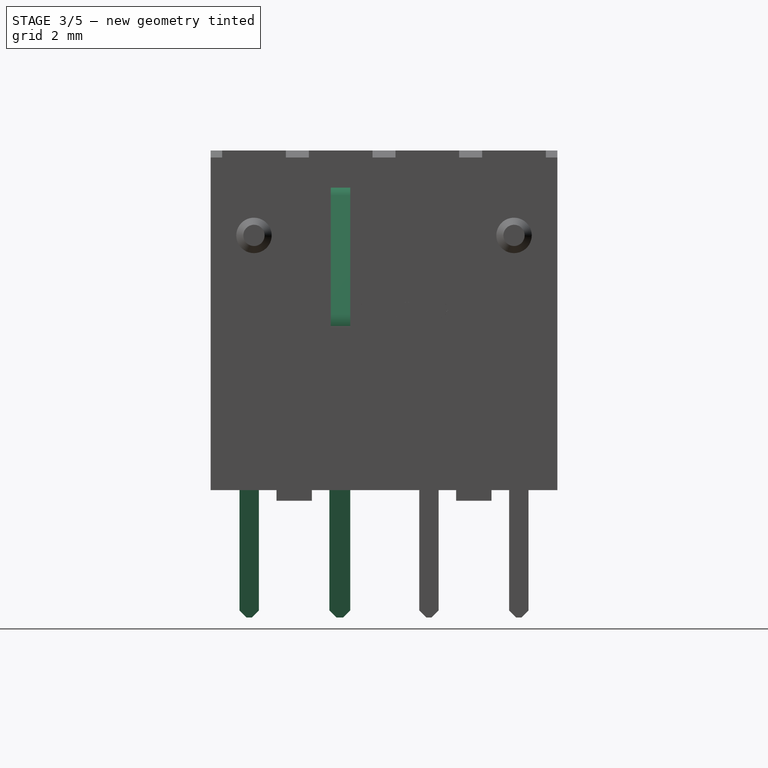
[diagram: stage 3 of 5 — right view after this stage's code; geometry added in this stage tinted green]
FEATURE [PartDesign::Pad] Pad005
  Length = 8
  Length2 = 100
  Placement = pos=(0,0,0) rot=(0.57735,0.57735,0.57735;2.0944rad)
  Profile = -> Sketch007
  Reversed = true
  Type = 0
FEATURE [Sketcher::SketchObject] Sketch009
  MapMode = 5
  Placement = pos=(-7,1.5e-15,-1.7e-15) rot=(0.57735,0.57735,-0.57735;4.18879rad)
  Support = -> [Pad005]
  sketch-geometry (8):
    g0: GeomPoint X=4.9 Y=-4.8 Z=0
    g1: LineSegment StartX=4.4 StartY=0 StartZ=0 EndX=5.4 EndY=0 EndZ=0
    g2: LineSegment StartX=5.4 StartY=0 StartZ=0 EndX=5.4 EndY=-3.5 EndZ=0
    g3: LineSegment StartX=5.4 StartY=-3.5 StartZ=0 EndX=4.4 EndY=-3.5 EndZ=0
    g4: LineSegment StartX=4.4 StartY=-3.5 StartZ=0 EndX=4.4 EndY=0 EndZ=0
    g5: LineSegment [constr] StartX=4.9 StartY=-4.8 StartZ=0 EndX=4.4 EndY=-4.8 EndZ=0
    g6: LineSegment [constr] StartX=4.9 StartY=-4.8 StartZ=0 EndX=5.4 EndY=-4.8 EndZ=0
    g7: LineSegment [constr] StartX=5.4 StartY=-4.8 StartZ=0 EndX=5.4 EndY=-3.5 EndZ=0
  constraints (22):
    c: DistanceX(g-1,g0) = 4.9
    c: DistanceY(g0,g-1) = 4.8
    c: Coincident(g1,g2)
    c: Coincident(g2,g3)
    c: Coincident(g3,g4)
    c: Coincident(g4,g1)
    c: Horizontal(g1)
    c: Horizontal(g3)
    c: Vertical(g2)
    c: Vertical(g4)
    c: PointOnObject(g1,g-1)
    c: Coincident(g5,g0)
    c: Coincident(g6,g0)
    c: Horizontal(g6)
    c: Horizontal(g5)
    c: Equal(g5,g6)
    c: Vertical(g5,g3)
    c: Vertical(g6,g2)
    c: Coincident(g7,g6)
    c: Coincident(g2,g7)
    c: DistanceY(g7,g7) = 1.3
    c: DistanceX(g1,g1) = 1
FEATURE [PartDesign::Pocket] Pocket003
  BaseFeature = -> Pad005
  Length = 6.8
  Length2 = 100
  Placement = pos=(0,0,0) rot=(0.57735,0.57735,0.57735;2.0944rad)
  Profile = -> Sketch009
  Type = 0
FEATURE [Sketcher::SketchObject] Sketch010
  MapMode = 5
  Placement = pos=(-7,1.5e-15,-1.7e-15) rot=(0.57735,0.57735,-0.57735;4.18879rad)
  Support = -> [Pad005]
  sketch-geometry (7):
    g0: GeomPoint X=4.9 Y=-4.8 Z=0
    g1: LineSegment StartX=4.4 StartY=0 StartZ=0 EndX=5.4 EndY=0 EndZ=0
    g2: LineSegment StartX=5.4 StartY=0 StartZ=0 EndX=5.4 EndY=-9.6 EndZ=0
    g3: LineSegment StartX=5.4 StartY=-9.6 StartZ=0 EndX=4.4 EndY=-9.6 EndZ=0
    g4: LineSegment StartX=4.4 StartY=-9.6 StartZ=0 EndX=4.4 EndY=0 EndZ=0
    g5: LineSegment [constr] StartX=4.9 StartY=-4.8 StartZ=0 EndX=4.4 EndY=-4.8 EndZ=0
    g6: LineSegment [constr] StartX=4.9 StartY=-4.8 StartZ=0 EndX=5.4 EndY=-4.8 EndZ=0
  constraints (20):
    c: DistanceX(g-1,g0) = 4.9
    c: DistanceY(g0,g-1) = 4.8
    c: Coincident(g1,g2)
    c: Coincident(g2,g3)
    c: Coincident(g3,g4)
    c: Coincident(g4,g1)
    c: Horizontal(g1)
    c: Horizontal(g3)
    c: Vertical(g2)
    c: Vertical(g4)
    c: PointOnObject(g1,g-1)
    c: Coincident(g5,g0)
    c: Coincident(g6,g0)
    c: Horizontal(g6)
    c: Horizontal(g5)
    c: Equal(g5,g6)
    c: Vertical(g5,g3)
    c: Vertical(g6,g2)
    c: DistanceY(g2,g2) = 9.6
    c: DistanceX(g3,g3) = 1
FEATURE [PartDesign::Pocket] Pocket004
  BaseFeature = -> Pocket003
  Length = 1
  Length2 = 100
  Placement = pos=(0,0,0) rot=(0.57735,0.57735,0.57735;2.0944rad)
  Profile = -> Sketch010
  Refine = true
  Type = 0
FEATURE [Sketcher::SketchObject] Sketch012
  AttachmentOffset = pos=(0,0,-3.945) rot=(0,0,1;0rad)
  MapMode = 5
  Placement = pos=(0,3.945,9e-16) rot=(1,0,0;1.5708rad)
  Support = -> [XZ_Plane002]
  expr: AttachmentOffset.Base.z = -3.945
  sketch-geometry (14):
    g0: LineSegment StartX=3.245 StartY=8.55 StartZ=0 EndX=3.745 EndY=8.55 EndZ=0
    g1: LineSegment StartX=4.12313 StartY=8.32473 StartZ=0 EndX=5.94286 EndY=4.96372 EndZ=0
    g2: LineSegment StartX=6.035 StartY=4.6 StartZ=0 EndX=6.035 EndY=-3.6 EndZ=0
    g3: LineSegment StartX=6.035 StartY=-3.6 StartZ=0 EndX=5.785 EndY=-3.6 EndZ=0
    g4: LineSegment StartX=5.785 StartY=-3.6 StartZ=0 EndX=5.785 EndY=4.6 EndZ=0
    g5: LineSegment StartX=3.245 StartY=8.3 StartZ=0 EndX=3.245 EndY=8.55 EndZ=0
    g6: ArcOfCircle CenterX=3.745 CenterY=8.12 CenterZ=0 NormalX=0 NormalY=0 NormalZ=1 AngleXU=0 Radius=0.43 StartAngle=0.496233 EndAngle=1.5708
    g7: ArcOfCircle CenterX=5.27107 CenterY=4.6 CenterZ=0 NormalX=0 NormalY=0 NormalZ=1 AngleXU=0 Radius=0.763931 StartAngle=0 EndAngle=0.496233
    g8: ArcOfCircle CenterX=5.285 CenterY=4.6 CenterZ=0 NormalX=0 NormalY=0 NormalZ=1 AngleXU=0 Radius=0.5 StartAngle=-9e-16 EndAngle=0.49572
    g9: LineSegment [constr] StartX=5.72481 StartY=4.83783 StartZ=0 EndX=5.94286 EndY=4.96372 EndZ=0
    g10: LineSegment StartX=3.245 StartY=8.3 StartZ=0 EndX=3.745 EndY=8.3 EndZ=0
    g11: LineSegment StartX=3.90914 StartY=8.19548 StartZ=0 EndX=5.72481 EndY=4.83783 EndZ=0
    g12: ArcOfCircle CenterX=3.73321 CenterY=8.10035 CenterZ=0 NormalX=0 NormalY=0 NormalZ=1 AngleXU=0 Radius=0.2 StartAngle=0.49572 EndAngle=1.51182
    g13: LineSegment [constr] StartX=3.90914 StartY=8.19548 StartZ=0 EndX=4.12313 EndY=8.32473 EndZ=0
  constraints (37):
    c: Vertical(g2)
    c: Coincident(g2,g3)
    c: Horizontal(g3)
    c: Coincident(g3,g4)
    c: Vertical(g4)
    c: Coincident(g5,g0)
    c: Vertical(g5)
    c: Horizontal(g0)
    c: Equal(g5,g3)
    c: DistanceX(g3,g3) = 0.25
    c: DistanceX(g-1,g3) = 5.785
    c: DistanceY(g3,g-1) = 3.6
    c: DistanceY(g-1,g5) = 8.3
    c: Tangent(g0,g6) = 1.5708
    c: Tangent(g1,g6) = 1.5708
    c: DistanceX(g-1,g5) = 3.245
    c: Tangent(g2,g7) = 1.5708
    c: Coincident(g9,g8) = -1.5708
    c: Tangent(g4,g8) = -1.5708
    c: DistanceY(g-1,g4) = 4.6
    c: Tangent(g1,g7) = 1.5708
    c: Horizontal(g2,g4)
    c: Coincident(g9,g1)
    c: Angle(g9) = 0.523599
    c: Radius(g8) = 0.5
    c: Coincident(g5,g10)
    c: Horizontal(g10)
    c: Tangent(g11,g12) = 1.5708
    c: Coincident(g13,g11)
    c: Coincident(g1,g13)
    c: Tangent(g11,g8) = 1.5708
    c: Coincident(g10,g12)
    c: Distance(g13) = 0.25
    c: Vertical(g10,g0)
    c: DistanceX(g0,g0) = 0.5
    c: Radius(g12) = 0.2
    c: DistanceY(g6,g10) = 0.18
FEATURE [PartDesign::Pad] Pad008
  Length = 0.55
  Length2 = 100
  Placement = pos=(0,0,0) rot=(1,0,0;1.5708rad)
  Profile = -> Sketch012
  Type = 0
FEATURE [PartDesign::Chamfer] Chamfer001
  Base = -> Pad008 [Edge22,Edge21]
  BaseFeature = -> Pad008
  Placement = pos=(0,0,0) rot=(1,0,0;1.5708rad)
  Size = 0.2
FEATURE [PartDesign::Body] Body002  label="PinC"
  Group = -> [Sketch012,Pad008,Chamfer001]
  Origin = -> Origin002
  Tip = -> Chamfer001
FEATURE [Sketcher::SketchObject] Sketch013
  AttachmentOffset = pos=(0,0,3.245) rot=(0,0,1;0rad)
  MapMode = 5
  Placement = pos=(3.245,-7e-16,7e-16) rot=(0.57735,0.57735,0.57735;2.0944rad)
  Support = -> [YZ_Plane003]
  sketch-geometry (4):
    g0: LineSegment StartX=0.815 StartY=0 StartZ=0 EndX=1.365 EndY=0 EndZ=0
    g1: LineSegment StartX=1.365 StartY=0 StartZ=0 EndX=1.365 EndY=-3.6 EndZ=0
    g2: LineSegment StartX=1.365 StartY=-3.6 StartZ=0 EndX=0.815 EndY=-3.6 EndZ=0
    g3: LineSegment StartX=0.815 StartY=-3.6 StartZ=0 EndX=0.815 EndY=0 EndZ=0
  constraints (12):
    c: Coincident(g0,g1)
    c: Coincident(g1,g2)
    c: Coincident(g2,g3)
    c: Coincident(g3,g0)
    c: Horizontal(g0)
    c: Horizontal(g2)
    c: Vertical(g1)
    c: Vertical(g3)
    c: DistanceX(g2,g2) = 0.55
    c: Horizontal(g0,g-1)
    c: DistanceY(g3,g3) = 3.6
    c: DistanceX(g-1,g0) = 0.815
FEATURE [PartDesign::Pad] Pad009
  Length = 0.25
  Length2 = 100
  Placement = pos=(0,0,0) rot=(0.57735,0.57735,0.57735;2.0944rad)
  Profile = -> Sketch013
  Type = 0
FEATURE [PartDesign::Chamfer] Chamfer002
  Base = -> Pad009 [Edge8,Edge5]
  BaseFeature = -> Pad009
  Placement = pos=(0,0,0) rot=(0.57735,0.57735,0.57735;2.0944rad)
  Size = 0.2
FEATURE [PartDesign::Body] Body003  label="Pin1"
  Group = -> [Sketch013,Pad009,Chamfer002]
  Origin = -> Origin003
  Tip = -> Chamfer002
FEATURE [Sketcher::SketchObject] Sketch014
  AttachmentOffset = pos=(0,0,3.245) rot=(0,0,1;0rad)
  MapMode = 5
  Placement = pos=(3.245,-7e-16,7e-16) rot=(0.57735,0.57735,0.57735;2.0944rad)
  Support = -> [YZ_Plane004]
  sketch-geometry (4):
    g0: LineSegment StartX=3.355 StartY=0 StartZ=0 EndX=3.905 EndY=0 EndZ=0
    g1: LineSegment StartX=3.905 StartY=0 StartZ=0 EndX=3.905 EndY=-3.6 EndZ=0
    g2: LineSegment StartX=3.905 StartY=-3.6 StartZ=0 EndX=3.355 EndY=-3.6 EndZ=0
    g3: LineSegment StartX=3.355 StartY=-3.6 StartZ=0 EndX=3.355 EndY=0 EndZ=0
  constraints (12):
    c: Coincident(g0,g1)
    c: Coincident(g1,g2)
    c: Coincident(g2,g3)
    c: Coincident(g3,g0)
    c: Horizontal(g0)
    c: Horizontal(g2)
    c: Vertical(g1)
    c: Vertical(g3)
    c: DistanceX(g2,g2) = 0.55
    c: Horizontal(g0,g-1)
    c: DistanceY(g3,g3) = 3.6
    c: DistanceX(g-1,g0) = 3.355
FEATURE [PartDesign::Pad] Pad010
  Length = 0.25
  Length2 = 100
  Placement = pos=(0,0,0) rot=(0.57735,0.57735,0.57735;2.0944rad)
  Profile = -> Sketch014
  Type = 0
FEATURE [PartDesign::Chamfer] Chamfer003
  Base = -> Pad010 [Edge8,Edge5]
  BaseFeature = -> Pad010
  Placement = pos=(0,0,0) rot=(0.57735,0.57735,0.57735;2.0944rad)
  Size = 0.2
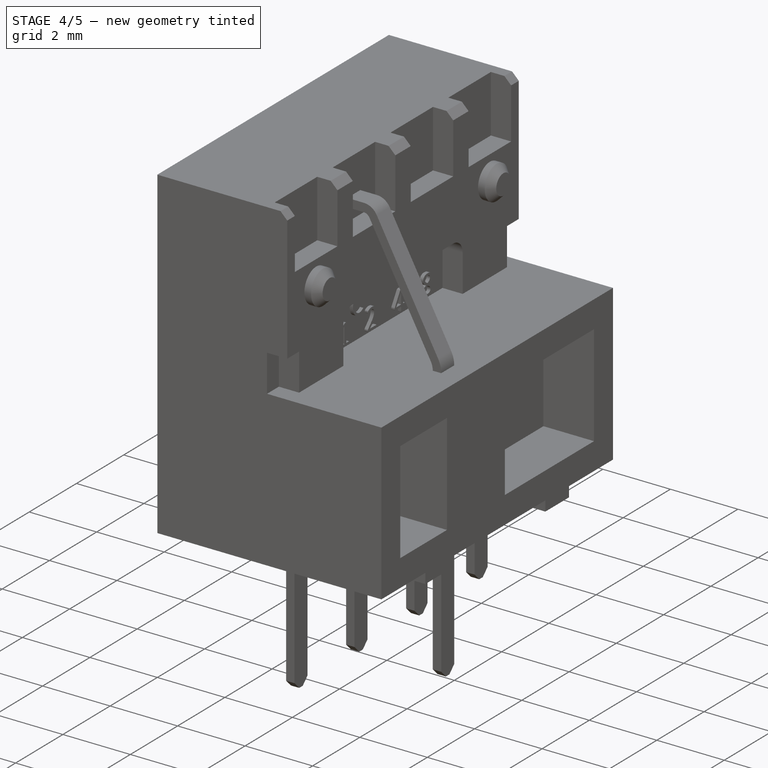
[diagram: stage 4 of 5 — iso view after this stage's code; geometry added in this stage tinted green]
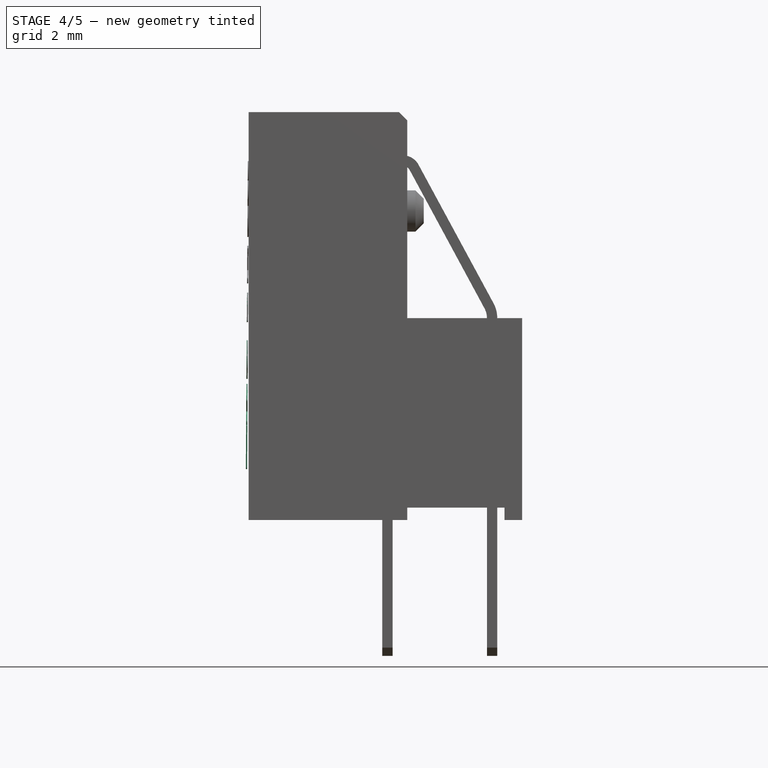
[diagram: stage 4 of 5 — front view after this stage's code; geometry added in this stage tinted green]
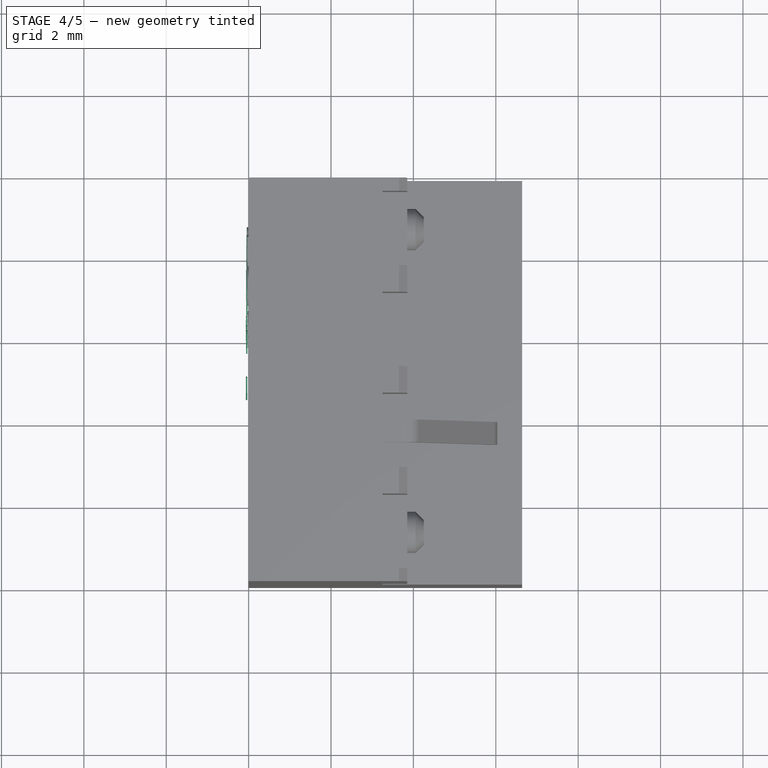
[diagram: stage 4 of 5 — top view after this stage's code; geometry added in this stage tinted green]
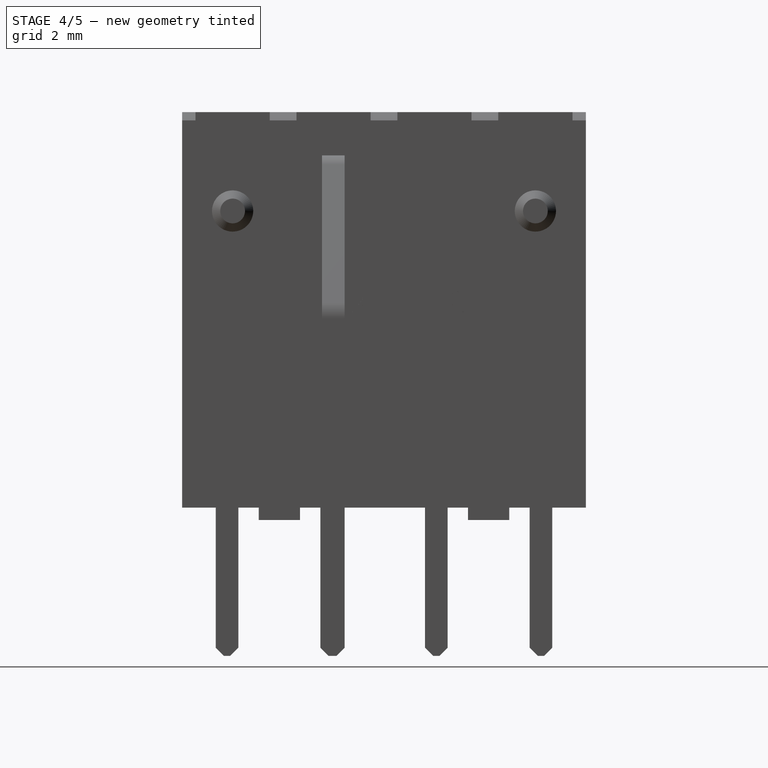
[diagram: stage 4 of 5 — right view after this stage's code; geometry added in this stage tinted green]
FEATURE [Part::Extrusion] Extrude008  label="ExtrudeF"
  Base = -> ShapeString010
  Dir = (-0.99998,7e-16,0.00637776)
  DirMode = 2
  FaceMakerClass = Part::FaceMakerBullseye
  LengthFwd = 0.03
  LengthRev = 0
  Solid = false
  Symmetric = false
FEATURE [Part::Extrusion] Extrude009  label="ExtrudeE"
  Base = -> ShapeString011
  Dir = (-0.99998,-6.06694e-08,0.0063779)
  DirMode = 2
  FaceMakerClass = Part::FaceMakerBullseye
  LengthFwd = 0.03
  LengthRev = 0
  Solid = false
  Symmetric = false
FEATURE [Part::Extrusion] Extrude010  label="ExtrudeD"
  Base = -> ShapeString012
  Dir = (-0.99998,1.74717e-07,0.00637734)
  DirMode = 2
  FaceMakerClass = Part::FaceMakerBullseye
  LengthFwd = 0.03
  LengthRev = 0
  Solid = false
  Symmetric = false
FEATURE [Part::Extrusion] Extrude011  label="ExtrudeC"
  Base = -> ShapeString013
  Dir = (-0.99998,-1.20608e-05,0.00638275)
  DirMode = 2
  FaceMakerClass = Part::FaceMakerBullseye
  LengthFwd = 0.03
  LengthRev = 0
  Solid = false
  Symmetric = false
FEATURE [Part::Extrusion] Extrude012  label="ExtrudeB"
  Base = -> ShapeString014
  Dir = (-0.99998,7e-16,0.00637776)
  DirMode = 2
  FaceMakerClass = Part::FaceMakerBullseye
  LengthFwd = 0.03
  LengthRev = 0
  Solid = false
  Symmetric = false
FEATURE [Part::Extrusion] Extrude013  label="ExtrudeA"
  Base = -> ShapeString015
  Dir = (-0.99998,-4.58522e-06,0.00638082)
  DirMode = 2
  FaceMakerClass = Part::FaceMakerBullseye
  LengthFwd = 0.03
  LengthRev = 0
  Solid = false
  Symmetric = false
FEATURE [Part::Extrusion] Extrude014  label="Extrude9"
  Base = -> ShapeString016
  Dir = (-0.99998,-2.79271e-06,0.00637891)
  DirMode = 2
  FaceMakerClass = Part::FaceMakerBullseye
  LengthFwd = 0.03
  LengthRev = 0
  Solid = false
  Symmetric = false
FEATURE [Part::Extrusion] Extrude015  label="Extrude8"
  Base = -> ShapeString017
  Dir = (-0.99998,4.83008e-06,0.0063768)
  DirMode = 2
  FaceMakerClass = Part::FaceMakerBullseye
  LengthFwd = 0.03
  LengthRev = 0
  Solid = false
  Symmetric = false
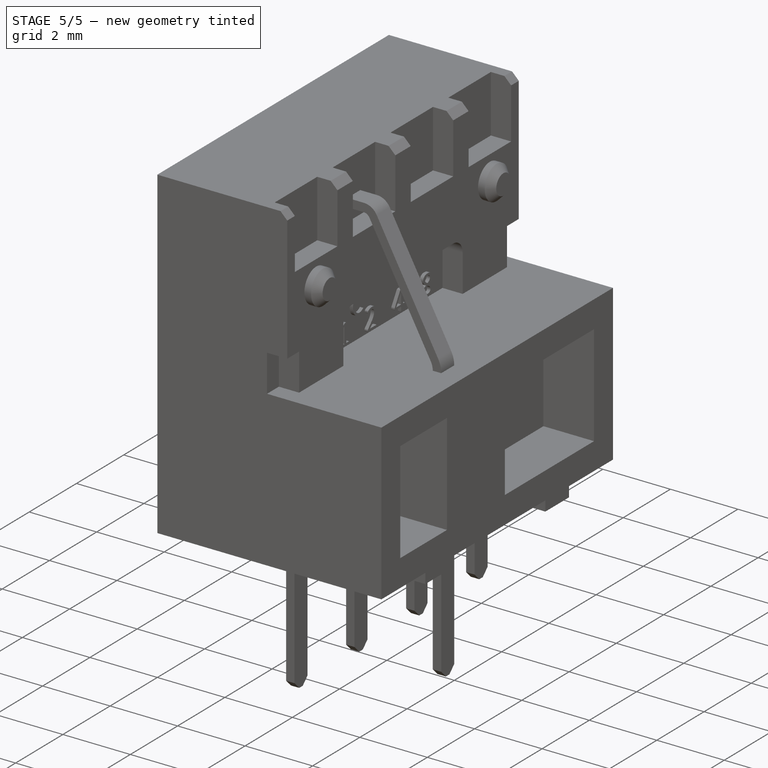
[diagram: stage 5 of 5 — iso view after this stage's code; geometry added in this stage tinted green]
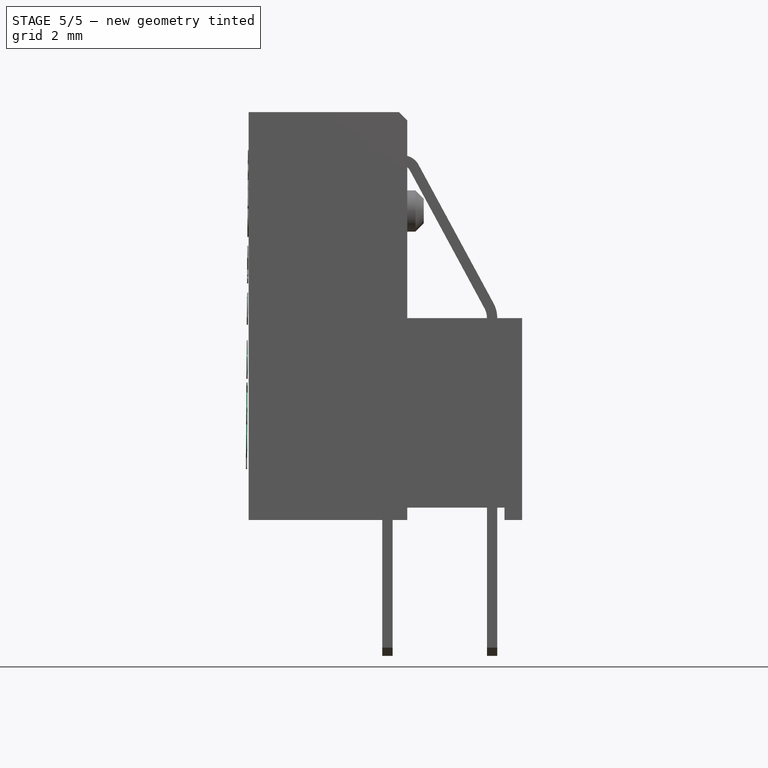
[diagram: stage 5 of 5 — front view after this stage's code; geometry added in this stage tinted green]
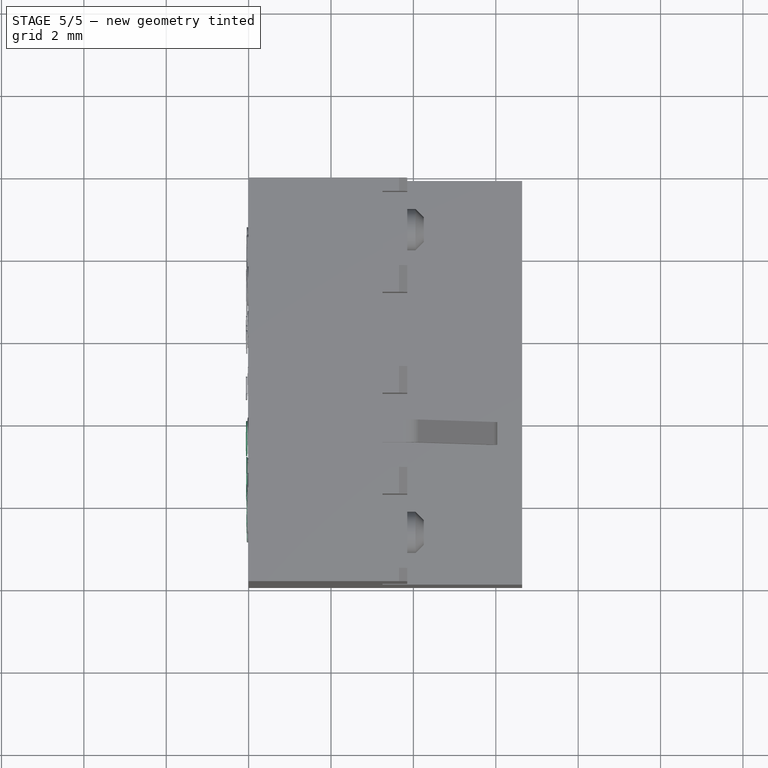
[diagram: stage 5 of 5 — top view after this stage's code; geometry added in this stage tinted green]
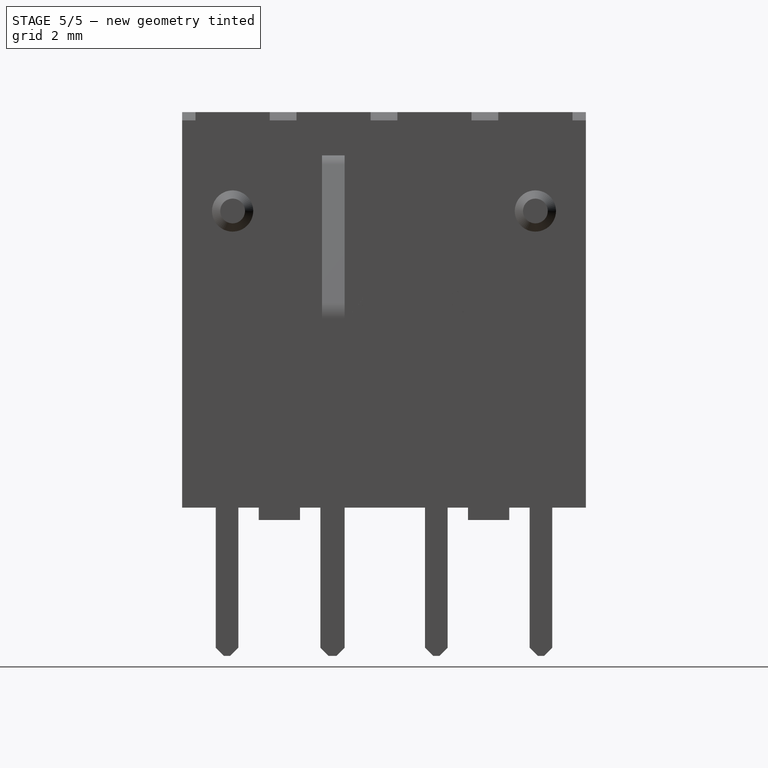
[diagram: stage 5 of 5 — right view after this stage's code; geometry added in this stage tinted green]
FEATURE [Part::Part2DObjectPython] ShapeString002  label="7"  # Draft 2D object (typed FeaturePython)
  AttachmentOffset = pos=(0.4,-2.9,2.7) rot=(0,0.707107,0.707107;3.14159rad)
  FontFile = <path>
  MapMode = 45
  Placement = pos=(0.00471039,5.3,7.60723) rot=(-0.576119,0.576119,0.579805;4.19247rad)
  Size = 1.4
  String = 7
  Support = -> [Pocket004]
  Tracking = 0
FEATURE [Part::Part2DObjectPython] ShapeString003  label="6"  # Draft 2D object (typed FeaturePython)
  AttachmentOffset = pos=(-0.7,-2.9,2.6) rot=(-0.139281,0.700215,0.700215;2.86482rad)
  FontFile = <path>
  MapMode = 45
  Placement = pos=(0.00407261,4.2,7.50723) rot=(-0.637668,0.426077,0.641746;3.95177rad)
  Size = 1.4
  String = 6
  Support = -> [Pocket004]
  Tracking = 0
FEATURE [Part::Part2DObjectPython] ShapeString004  label="5"  # Draft 2D object (typed FeaturePython)
  AttachmentOffset = pos=(-1.75,-2.9,2.15) rot=(0.281085,-0.678598,-0.678598;3.68963rad)
  FontFile = <path>
  MapMode = 45
  Placement = pos=(0.00120262,3.15,7.05724) rot=(0.676601,-0.280257,-0.680931;2.59178rad)
  Size = 1.4
  String = 5
  Support = -> [Pocket004]
  Tracking = 0
FEATURE [Part::Part2DObjectPython] ShapeString005  label="4"  # Draft 2D object (typed FeaturePython)
  AttachmentOffset = pos=(-2.45,-2.9,1.35) rot=(-0.427192,0.639338,0.639338;2.33413rad)
  FontFile = <path>
  MapMode = 45
  Placement = pos=(-0.00389959,2.45,6.25726) rot=(-0.69802,0.138845,0.702489;3.41926rad)
  Size = 1.4
  String = 4
  Support = -> [Pocket004]
  Tracking = 0
FEATURE [Part::Part2DObjectPython] ShapeString006  label="3"  # Draft 2D object (typed FeaturePython)
  AttachmentOffset = pos=(-2.8,-2.9,0.3) rot=(0.57735,-0.57735,-0.57735;4.18879rad)
  FontFile = <path>
  MapMode = 45
  Placement = pos=(-0.0105962,2.1,5.20728) rot=(0.704848,0,-0.709358;3.14159rad)
  Size = 1.4
  String = 3
  Support = -> [Pocket004]
  Tracking = 0
FEATURE [Part::Part2DObjectPython] ShapeString007  label="2"  # Draft 2D object (typed FeaturePython)
  AttachmentOffset = pos=(-2.75,-2.9,-0.75) rot=(-0.72683,0.485653,0.485653;1.88457rad)
  FontFile = <path>
  MapMode = 45
  Placement = pos=(-0.0172929,2.15,4.1573) rot=(-0.69802,-0.138844,0.702488;2.86392rad)
  Size = 1.4
  String = 2
  Support = -> [Pocket004]
  Tracking = 0
FEATURE [Part::Part2DObjectPython] ShapeString008  label="1"  # Draft 2D object (typed FeaturePython)
  AttachmentOffset = pos=(-2.3,-2.9,-1.75) rot=(-0.862856,0.357407,0.357407;1.71777rad)
  FontFile = <path>
  MapMode = 45
  Placement = pos=(-0.0236706,2.6,3.15732) rot=(-0.676601,-0.280257,0.680931;2.59177rad)
  Size = 1.4
  String = 1
  Support = -> [Pocket004]
  Tracking = 0
FEATURE [Part::Part2DObjectPython] ShapeString009  label="0"  # Draft 2D object (typed FeaturePython)
  AttachmentOffset = pos=(-1.5,-2.9,-2.5) rot=(-0.962637,0.19148,0.19148;1.60886rad)
  FontFile = <path>
  MapMode = 45
  Placement = pos=(-0.028454,3.4,2.40734) rot=(-0.637667,-0.426076,0.641748;2.33142rad)
  Size = 1.4
  String = 0
  Support = -> [Pocket004]
  Tracking = 0
FEATURE [Part::Part2DObjectPython] ShapeString010  label="F"  # Draft 2D object (typed FeaturePython)
  AttachmentOffset = pos=(-0.5,-2.9,-2.9) rot=(-1,0,0;1.5708rad)
  FontFile = <path>
  MapMode = 45
  Placement = pos=(-0.0310051,4.4,2.00735) rot=(-0.576119,-0.576119,0.579805;2.09072rad)
  Size = 1.4
  String = F
  Support = -> [Pocket004]
  Tracking = 0
FEATURE [Part::Part2DObjectPython] ShapeString011  label="E"  # Draft 2D object (typed FeaturePython)
  AttachmentOffset = pos=(0.6,-2.9,-2.85) rot=(-0.962637,-0.19148,-0.19148;1.60886rad)
  FontFile = <path>
  MapMode = 45
  Placement = pos=(-0.0306862,5.5,2.05735) rot=(-0.484919,-0.725732,0.488022;1.87995rad)
  Size = 1.4
  String = E
  Support = -> [Pocket004]
  Tracking = 0
FEATURE [Part::Part2DObjectPython] ShapeString012  label="D"  # Draft 2D object (typed FeaturePython)
  AttachmentOffset = pos=(1.55,-2.9,-2.4) rot=(-0.862856,-0.357407,-0.357407;1.71777rad)
  FontFile = <path>
  MapMode = 45
  Placement = pos=(-0.0278162,6.45,2.50734) rot=(-0.357114,-0.86215,0.359398;1.71227rad)
  Size = 1.4
  String = D
  Support = -> [Pocket004]
  Tracking = 0
FEATURE [Part::Part2DObjectPython] ShapeString013  label="C"  # Draft 2D object (typed FeaturePython)
  AttachmentOffset = pos=(2.35,-2.9,-1.6) rot=(-0.72683,-0.485657,-0.48565;1.88457rad)
  FontFile = <path>
  MapMode = 45
  Placement = pos=(-0.022714,7.25,3.30732) rot=(-0.191431,-0.96241,0.192668;1.60272rad)
  Size = 1.4
  String = C
  Support = -> [Pocket004]
  Tracking = 0
FEATURE [Part::Part2DObjectPython] ShapeString014  label="B"  # Draft 2D object (typed FeaturePython)
  AttachmentOffset = pos=(2.7,-2.9,-0.55) rot=(0.57735,0.57735,0.57735;4.18879rad)
  FontFile = <path>
  MapMode = 45
  Placement = pos=(-0.0160173,7.6,4.3573) rot=(0,1,0;4.71877rad)
  Size = 1.4
  String = B
  Support = -> [Pocket004]
  Tracking = 0
FEATURE [Part::Part2DObjectPython] ShapeString015  label="A"  # Draft 2D object (typed FeaturePython)
  AttachmentOffset = pos=(2.75,-2.9,0.5) rot=(0.427192,0.639338,0.639338;3.94905rad)
  FontFile = <path>
  MapMode = 45
  Placement = pos=(-0.00932068,7.65,5.40728) rot=(-0.191436,0.962411,0.192657;4.68046rad)
  Size = 1.4
  String = A
  Support = -> [Pocket004]
  Tracking = 0
FEATURE [Part::Part2DObjectPython] ShapeString016  label="9"  # Draft 2D object (typed FeaturePython)
  AttachmentOffset = pos=(2.2,-2.9,1.55) rot=(0.281085,0.678598,0.678598;3.68963rad)
  FontFile = <path>
  MapMode = 45
  Placement = pos=(-0.00262403,7.1,6.45726) rot=(-0.357114,0.862151,0.359397;4.57092rad)
  Size = 1.4
  String = 9
  Support = -> [Pocket004]
  Tracking = 0
FEATURE [Part::Part2DObjectPython] ShapeString017  label="8"  # Draft 2D object (typed FeaturePython)
  AttachmentOffset = pos=(1.45,-2.9,2.3) rot=(0.139281,0.700215,0.700215;3.41837rad)
  FontFile = <path>
  MapMode = 45
  Placement = pos=(0.00215928,6.35,7.20724) rot=(-0.484919,0.725731,0.488024;4.40323rad)
  Size = 1.4
  String = 8
  Support = -> [Pocket004]
  Tracking = 0
FEATURE [Part::Extrusion] Extrude  label="Extrude7"
  Base = -> ShapeString002
  Dir = (-0.99998,7e-16,0.00637776)
  DirMode = 2
  FaceMakerClass = Part::FaceMakerBullseye
  LengthFwd = 0.03
  LengthRev = 0
  Solid = false
  Symmetric = false
FEATURE [Part::Extrusion] Extrude001  label="Extrude6"
  Base = -> ShapeString003
  Dir = (-0.99998,-4.83008e-06,0.0063768)
  DirMode = 2
  FaceMakerClass = Part::FaceMakerBullseye
  LengthFwd = 0.03
  LengthRev = 0
  Solid = false
  Symmetric = false
FEATURE [Part::Extrusion] Extrude002  label="Extrude5"
  Base = -> ShapeString004
  Dir = (-0.99998,2.79271e-06,0.00637891)
  DirMode = 2
  FaceMakerClass = Part::FaceMakerBullseye
  LengthFwd = 0.03
  LengthRev = 0
  Solid = false
  Symmetric = false
FEATURE [Part::Extrusion] Extrude003  label="Extrude4"
  Base = -> ShapeString005
  Dir = (-0.99998,4.58522e-06,0.00638082)
  DirMode = 2
  FaceMakerClass = Part::FaceMakerBullseye
  LengthFwd = 0.03
  LengthRev = 0
  Solid = false
  Symmetric = false
FEATURE [Part::Extrusion] Extrude004  label="Extrude3"
  Base = -> ShapeString006
  Dir = (-0.99998,6e-16,0.00637776)
  DirMode = 2
  FaceMakerClass = Part::FaceMakerBullseye
  LengthFwd = 0.03
  LengthRev = 0
  Solid = false
  Symmetric = false
FEATURE [Part::Extrusion] Extrude005  label="Extrude2"
  Base = -> ShapeString007
  Dir = (-0.99998,1.98382e-06,0.00638073)
  DirMode = 2
  FaceMakerClass = Part::FaceMakerBullseye
  LengthFwd = 0.03
  LengthRev = 0
  Solid = false
  Symmetric = false
FEATURE [Part::Extrusion] Extrude006  label="Extrude1"
  Base = -> ShapeString008
  Dir = (-0.99998,7.50878e-08,0.00637794)
  DirMode = 2
  FaceMakerClass = Part::FaceMakerBullseye
  LengthFwd = 0.03
  LengthRev = 0
  Solid = false
  Symmetric = false
FEATURE [Part::Extrusion] Extrude007  label="Extrude0"
  Base = -> ShapeString009
  Dir = (-0.99998,8.26153e-08,0.00637817)
  DirMode = 2
  FaceMakerClass = Part::FaceMakerBullseye
  LengthFwd = 0.03
  LengthRev = 0
  Solid = false
  Symmetric = false
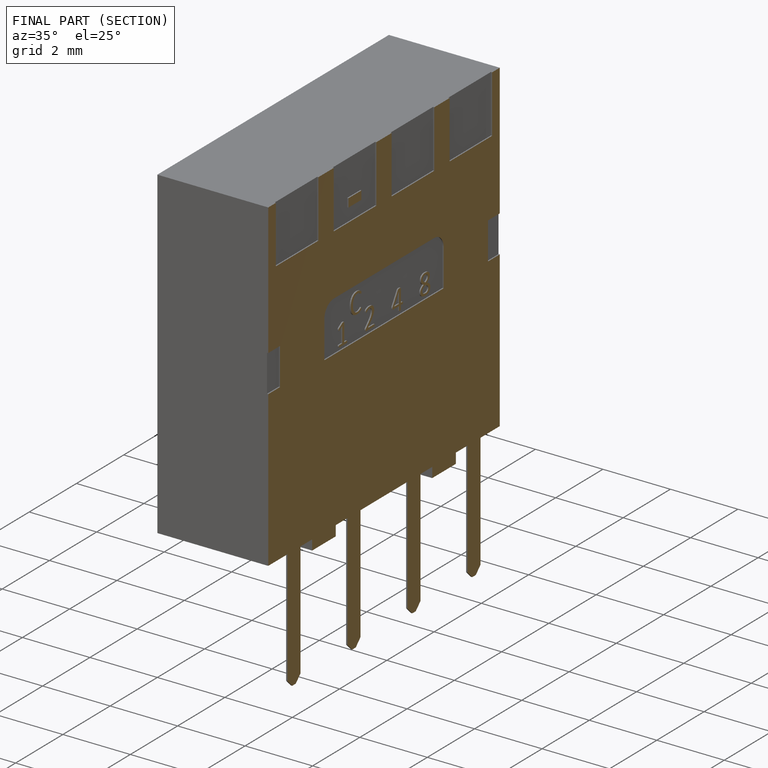
[diagram: finished part — half-section view (interior)]
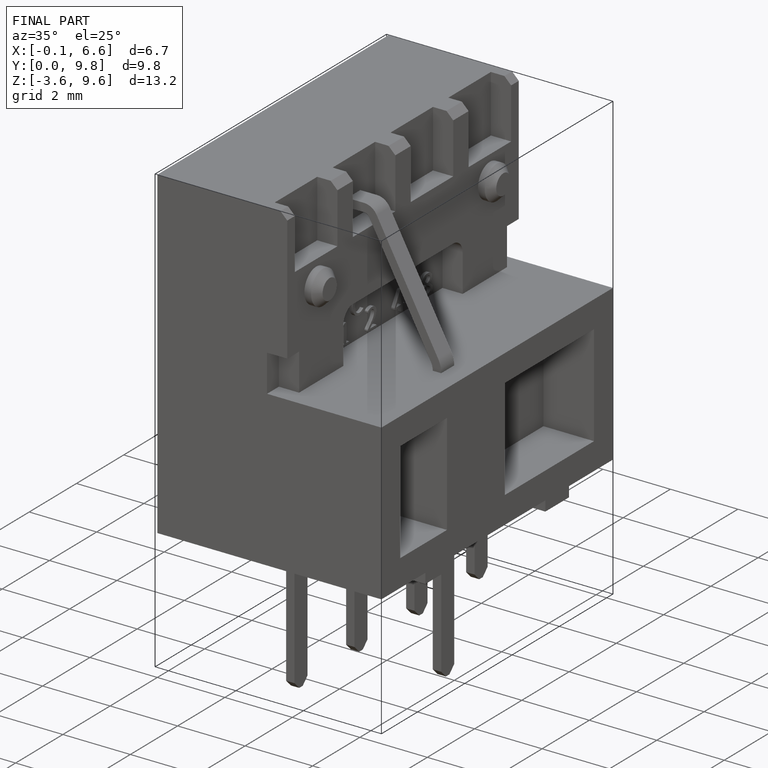
[diagram: finished part — iso view with bounding-box wireframe]
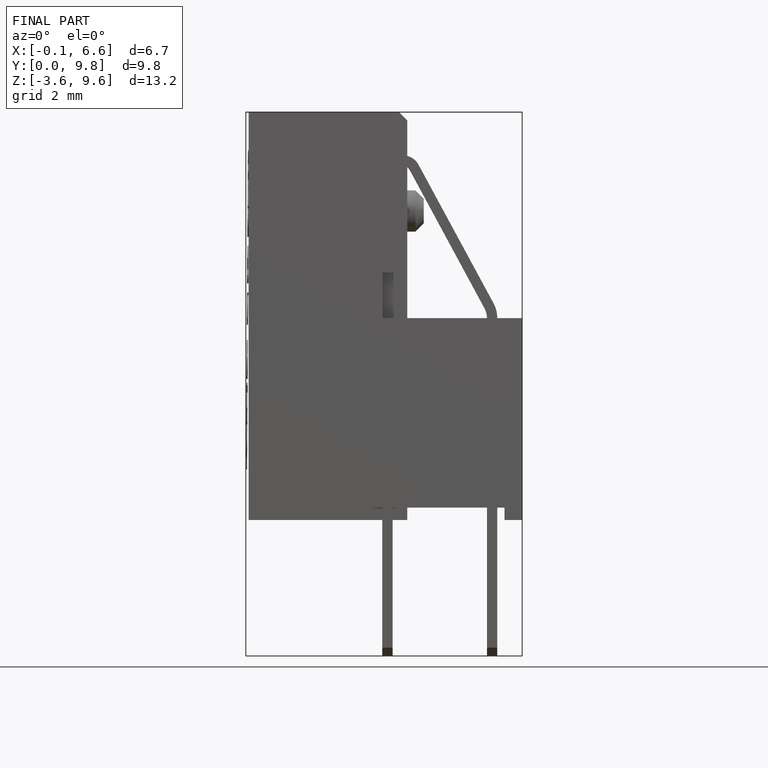
[diagram: finished part — front view with bounding-box wireframe]
